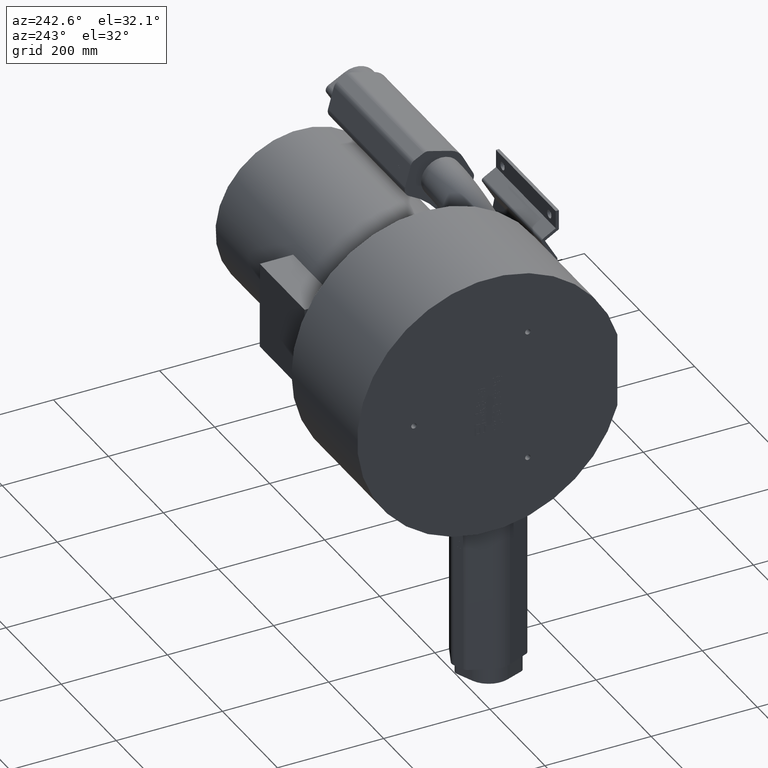
[diagram: clean part render]
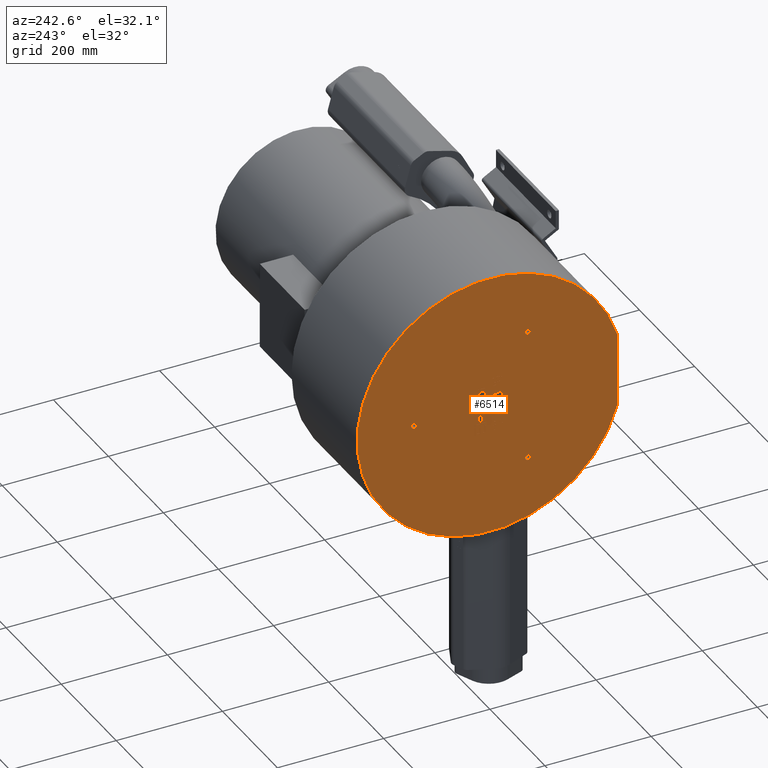
[diagram: same view with one face highlighted and labeled with its STEP entity id]
A machine part, auxiliary view. The second image highlights one B-rep face of the part: STEP entity #6514.
In plain terms, the highlighted planar face has unit normal (-1, 0, 0).
Its self-contained STEP definition (entity closure, byte-faithful):
#397=CARTESIAN_POINT('',(0.0,-3.974047899246216,-11.78353658536585));
#398=VERTEX_POINT('',#397);
#405=CARTESIAN_POINT('',(0.0,-3.974047899246216,-18.673780487804876));
#406=VERTEX_POINT('',#405);
#407=CARTESIAN_POINT('',(0.0,-3.974047899246216,-18.673780487804876));
#408=DIRECTION('',(0.0,0.0,1.0));
#409=VECTOR('',#408,6.890243902439027);
#410=LINE('',#407,#409);
#411=EDGE_CURVE('',#406,#398,#410,.T.);
#437=CARTESIAN_POINT('',(0.0,-4.263682045587678,-8.216463414634143));
#438=VERTEX_POINT('',#437);
#445=CARTESIAN_POINT('',(0.0,-3.974047899246216,-11.78353658536585));
#446=CARTESIAN_POINT('',(0.0,-3.974047899246216,-9.45121951219512));
#447=CARTESIAN_POINT('',(0.0,-4.263682045587678,-8.216463414634143));
#448=QUASI_UNIFORM_CURVE('',2,(#445,#446,#447),.UNSPECIFIED.,.F.,.U.);
#449=EDGE_CURVE('',#398,#438,#448,.T.);
#470=CARTESIAN_POINT('',(0.0,-5.69660887485597,-5.289634146341459));
#471=VERTEX_POINT('',#470);
#478=CARTESIAN_POINT('',(0.0,-4.263682045587678,-8.216463414634143));
#479=CARTESIAN_POINT('',(0.0,-4.660023509002313,-6.493902439024389));
#480=CARTESIAN_POINT('',(0.0,-5.69660887485597,-5.289634146341459));
#481=QUASI_UNIFORM_CURVE('',2,(#478,#479,#480),.UNSPECIFIED.,.F.,.U.);
#482=EDGE_CURVE('',#438,#471,#481,.T.);
#506=CARTESIAN_POINT('',(0.0,-13.867340582173044,-2.134146341463412));
#507=VERTEX_POINT('',#506);
#514=CARTESIAN_POINT('',(0.0,-5.69660887485597,-5.289634146341459));
#515=CARTESIAN_POINT('',(0.0,-7.022828387051094,-3.704268292682924));
#516=CARTESIAN_POINT('',(0.0,-11.184413752904751,-2.134146341463412));
#517=CARTESIAN_POINT('',(0.0,-13.867340582173044,-2.134146341463412));
#518=QUASI_UNIFORM_CURVE('',2,(#514,#515,#516,#517),.UNSPECIFIED.,.F.,.U.);
#519=EDGE_CURVE('',#471,#507,#518,.T.);
#552=CARTESIAN_POINT('',(0.0,-23.974047899246216,-11.448170731707314));
#553=VERTEX_POINT('',#552);
#560=CARTESIAN_POINT('',(0.0,-13.867340582173044,-2.134146341463412));
#561=CARTESIAN_POINT('',(0.0,-16.138682045587679,-2.134146341463412));
#562=CARTESIAN_POINT('',(0.0,-19.660023509002315,-3.201219512195119));
#563=CARTESIAN_POINT('',(0.0,-21.961852777294997,-4.862804878048777));
#564=CARTESIAN_POINT('',(0.0,-23.28807228949012,-6.844512195121948));
#565=CARTESIAN_POINT('',(0.0,-23.974047899246216,-9.634146341463412));
#566=CARTESIAN_POINT('',(0.0,-23.974047899246216,-11.448170731707314));
#567=QUASI_UNIFORM_CURVE('',2,(#560,#561,#562,#563,#564,#565,#566),.UNSPECIFIED.,.F.,.U.);
#568=EDGE_CURVE('',#507,#553,#567,.T.);
#587=CARTESIAN_POINT('',(0.0,-23.974047899246216,-18.673780487804876));
#588=VERTEX_POINT('',#587);
#595=CARTESIAN_POINT('',(0.0,-23.974047899246216,-11.448170731707314));
#596=DIRECTION('',(0.0,0.0,-1.0));
#597=VECTOR('',#596,7.225609756097562);
#598=LINE('',#595,#597);
#599=EDGE_CURVE('',#553,#588,#598,.T.);
#617=CARTESIAN_POINT('',(0.0,-23.974047899246216,-18.673780487804876));
#618=DIRECTION('',(0.0,1.0,0.0));
#619=VECTOR('',#618,20.0);
#620=LINE('',#617,#619);
#621=EDGE_CURVE('',#588,#406,#620,.T.);
#674=CARTESIAN_POINT('',(0.0,-21.946608874855972,-29.801829268292678));
#675=VERTEX_POINT('',#674);
#682=CARTESIAN_POINT('',(0.0,-17.327706435831583,-35.716463414634141));
#683=VERTEX_POINT('',#682);
#684=CARTESIAN_POINT('',(0.0,-17.327706435831583,-35.716463414634141));
#685=CARTESIAN_POINT('',(0.0,-18.836852777294997,-35.533536585365852));
#686=CARTESIAN_POINT('',(0.0,-20.757584484612067,-34.237804878048777));
#687=CARTESIAN_POINT('',(0.0,-21.946608874855972,-31.50914634146341));
#688=CARTESIAN_POINT('',(0.0,-21.946608874855972,-29.801829268292678));
#689=QUASI_UNIFORM_CURVE('',2,(#684,#685,#686,#687,#688),.UNSPECIFIED.,.F.,.U.);
#690=EDGE_CURVE('',#683,#675,#689,.T.);
#722=CARTESIAN_POINT('',(0.0,-18.547218630953534,-24.832317073170728));
#723=VERTEX_POINT('',#722);
#730=CARTESIAN_POINT('',(0.0,-21.946608874855972,-29.801829268292678));
#731=CARTESIAN_POINT('',(0.0,-21.946608874855972,-28.292682926829265));
#732=CARTESIAN_POINT('',(0.0,-21.04721863095353,-25.960365853658534));
#733=CARTESIAN_POINT('',(0.0,-19.477096679734021,-24.832317073170728));
#734=CARTESIAN_POINT('',(0.0,-18.547218630953534,-24.832317073170728));
#735=QUASI_UNIFORM_CURVE('',2,(#730,#731,#732,#733,#734),.UNSPECIFIED.,.F.,.U.);
#736=EDGE_CURVE('',#675,#723,#735,.T.);
#760=CARTESIAN_POINT('',(0.0,-15.727096679734021,-27.179878048780488));
#761=VERTEX_POINT('',#760);
#768=CARTESIAN_POINT('',(0.0,-18.547218630953534,-24.832317073170728));
#769=CARTESIAN_POINT('',(0.0,-17.602096679734021,-24.832317073170728));
#770=CARTESIAN_POINT('',(0.0,-16.199657655343778,-25.914634146341456));
#771=CARTESIAN_POINT('',(0.0,-15.727096679734021,-27.179878048780488));
#772=QUASI_UNIFORM_CURVE('',2,(#768,#769,#770,#771),.UNSPECIFIED.,.F.,.U.);
#773=EDGE_CURVE('',#723,#761,#772,.T.);
#797=CARTESIAN_POINT('',(0.0,-13.486243021197435,-34.634146341463413));
#798=VERTEX_POINT('',#797);
#805=CARTESIAN_POINT('',(0.0,-15.727096679734021,-27.179878048780488));
#806=CARTESIAN_POINT('',(0.0,-15.406974728514509,-27.987804878048777));
#807=CARTESIAN_POINT('',(0.0,-14.080755216319387,-33.521341463414629));
#808=CARTESIAN_POINT('',(0.0,-13.486243021197435,-34.634146341463406));
#809=QUASI_UNIFORM_CURVE('',2,(#805,#806,#807,#808),.UNSPECIFIED.,.F.,.U.);
#810=EDGE_CURVE('',#761,#798,#809,.T.);
#834=CARTESIAN_POINT('',(0.0,-9.141730826075484,-37.469512195121951));
#835=VERTEX_POINT('',#834);
#842=CARTESIAN_POINT('',(0.0,-13.486243021197435,-34.634146341463406));
#843=CARTESIAN_POINT('',(0.0,-12.739291801685241,-36.067073170731703));
#844=CARTESIAN_POINT('',(0.0,-10.513682045587679,-37.469512195121951));
#845=CARTESIAN_POINT('',(0.0,-9.141730826075483,-37.469512195121951));
#846=QUASI_UNIFORM_CURVE('',2,(#842,#843,#844,#845),.UNSPECIFIED.,.F.,.U.);
#847=EDGE_CURVE('',#798,#835,#846,.T.);
#874=CARTESIAN_POINT('',(0.0,-3.623438143148654,-30.411585365853657));
#875=VERTEX_POINT('',#874);
#882=CARTESIAN_POINT('',(0.0,-9.141730826075483,-37.469512195121951));
#883=CARTESIAN_POINT('',(0.0,-7.617340582173044,-37.469512195121951));
#884=CARTESIAN_POINT('',(0.0,-4.995389362660849,-35.746951219512191));
#885=CARTESIAN_POINT('',(0.0,-3.623438143148654,-32.439024390243901));
#886=CARTESIAN_POINT('',(0.0,-3.623438143148654,-30.411585365853657));
#887=QUASI_UNIFORM_CURVE('',2,(#882,#883,#884,#885,#886),.UNSPECIFIED.,.F.,.U.);
#888=EDGE_CURVE('',#835,#875,#887,.T.);
#915=CARTESIAN_POINT('',(0.0,-9.599047899246216,-22.881097560975604));
#916=VERTEX_POINT('',#915);
#923=CARTESIAN_POINT('',(0.0,-3.623438143148654,-30.411585365853657));
#924=CARTESIAN_POINT('',(0.0,-3.623438143148654,-28.185975609756095));
#925=CARTESIAN_POINT('',(0.0,-5.056364972416947,-24.786585365853657));
#926=CARTESIAN_POINT('',(0.0,-7.845999118758411,-22.942073170731703));
#927=CARTESIAN_POINT('',(0.0,-9.599047899246216,-22.881097560975604));
#928=QUASI_UNIFORM_CURVE('',2,(#923,#924,#925,#926,#927),.UNSPECIFIED.,.F.,.U.);
#929=EDGE_CURVE('',#875,#916,#928,.T.);
#948=CARTESIAN_POINT('',(0.0,-9.797218630953532,-25.411585365853657));
#949=VERTEX_POINT('',#948);
#956=CARTESIAN_POINT('',(0.0,-9.599047899246221,-22.881097560975611));
#957=DIRECTION('',(0.0,-0.078074205759966,-0.996947550473419));
#958=VECTOR('',#957,2.538235641058951);
#959=LINE('',#956,#958);
#960=EDGE_CURVE('',#916,#949,#959,.T.);
#984=CARTESIAN_POINT('',(0.0,-5.955755216319385,-30.304878048780488));
#985=VERTEX_POINT('',#984);
#992=CARTESIAN_POINT('',(0.0,-9.797218630953532,-25.411585365853657));
#993=CARTESIAN_POINT('',(0.0,-7.891730826075483,-25.609756097560972));
#994=CARTESIAN_POINT('',(0.0,-5.955755216319385,-27.987804878048777));
#995=CARTESIAN_POINT('',(0.0,-5.955755216319385,-30.304878048780488));
#996=QUASI_UNIFORM_CURVE('',2,(#992,#993,#994,#995),.UNSPECIFIED.,.F.,.U.);
#997=EDGE_CURVE('',#949,#985,#996,.T.);
#1021=CARTESIAN_POINT('',(0.0,-8.958803996807191,-34.923780487804876));
#1022=VERTEX_POINT('',#1021);
#1029=CARTESIAN_POINT('',(0.0,-5.955755216319385,-30.304878048780488));
#1030=CARTESIAN_POINT('',(0.0,-5.955755216319385,-32.713414634146339));
#1031=CARTESIAN_POINT('',(0.0,-7.724047899246216,-34.923780487804876));
#1032=CARTESIAN_POINT('',(0.0,-8.958803996807191,-34.923780487804876));
#1033=QUASI_UNIFORM_CURVE('',2,(#1029,#1030,#1031,#1032),.UNSPECIFIED.,.F.,.U.);
#1034=EDGE_CURVE('',#985,#1022,#1033,.T.);
#1055=CARTESIAN_POINT('',(0.0,-10.742340582173044,-34.146341463414629));
#1056=VERTEX_POINT('',#1055);
#1063=CARTESIAN_POINT('',(0.0,-8.958803996807191,-34.923780487804876));
#1064=CARTESIAN_POINT('',(0.0,-10.041121069977923,-34.923780487804876));
#1065=CARTESIAN_POINT('',(0.0,-10.742340582173044,-34.146341463414629));
#1066=QUASI_UNIFORM_CURVE('',2,(#1063,#1064,#1065),.UNSPECIFIED.,.F.,.U.);
#1067=EDGE_CURVE('',#1022,#1056,#1066,.T.);
#1091=CARTESIAN_POINT('',(0.0,-13.440511313880361,-25.685975609756095));
#1092=VERTEX_POINT('',#1091);
#1099=CARTESIAN_POINT('',(0.0,-10.742340582173044,-34.146341463414629));
#1100=CARTESIAN_POINT('',(0.0,-11.428316191929142,-33.368902439024389));
#1101=CARTESIAN_POINT('',(0.0,-12.891730826075484,-26.890243902439018));
#1102=CARTESIAN_POINT('',(0.0,-13.440511313880361,-25.685975609756095));
#1103=QUASI_UNIFORM_CURVE('',2,(#1099,#1100,#1101,#1102),.UNSPECIFIED.,.F.,.U.);
#1104=EDGE_CURVE('',#1056,#1092,#1103,.T.);
#1128=CARTESIAN_POINT('',(0.0,-18.318560094368166,-22.286585365853657));
#1129=VERTEX_POINT('',#1128);
#1136=CARTESIAN_POINT('',(0.0,-13.440511313880361,-25.685975609756095));
#1137=CARTESIAN_POINT('',(0.0,-14.248438143148654,-23.948170731707314));
#1138=CARTESIAN_POINT('',(0.0,-16.717950338270605,-22.286585365853657));
#1139=CARTESIAN_POINT('',(0.0,-18.318560094368166,-22.286585365853657));
#1140=QUASI_UNIFORM_CURVE('',2,(#1136,#1137,#1138,#1139),.UNSPECIFIED.,.F.,.U.);
#1141=EDGE_CURVE('',#1092,#1129,#1140,.T.);
#1168=CARTESIAN_POINT('',(0.0,-24.309413752904753,-29.679878048780491));
#1169=VERTEX_POINT('',#1168);
#1176=CARTESIAN_POINT('',(0.0,-18.318560094368166,-22.286585365853657));
#1177=CARTESIAN_POINT('',(0.0,-19.919169850465728,-22.286585365853657));
#1178=CARTESIAN_POINT('',(0.0,-22.739291801685241,-24.115853658536579));
#1179=CARTESIAN_POINT('',(0.0,-24.309413752904753,-27.545731707317067));
#1180=CARTESIAN_POINT('',(0.0,-24.309413752904753,-29.679878048780488));
#1181=QUASI_UNIFORM_CURVE('',2,(#1176,#1177,#1178,#1179,#1180),.UNSPECIFIED.,.F.,.U.);
#1182=EDGE_CURVE('',#1129,#1169,#1181,.T.);
#1209=CARTESIAN_POINT('',(0.0,-17.541121069977923,-38.216463414634141));
#1210=VERTEX_POINT('',#1209);
#1217=CARTESIAN_POINT('',(0.0,-24.309413752904753,-29.679878048780488));
#1218=CARTESIAN_POINT('',(0.0,-24.309413752904753,-32.408536585365852));
#1219=CARTESIAN_POINT('',(0.0,-22.724047899246216,-36.067073170731703));
#1220=CARTESIAN_POINT('',(0.0,-19.553316191929142,-38.155487804878049));
#1221=CARTESIAN_POINT('',(0.0,-17.541121069977923,-38.216463414634141));
#1222=QUASI_UNIFORM_CURVE('',2,(#1217,#1218,#1219,#1220,#1221),.UNSPECIFIED.,.F.,.U.);
#1223=EDGE_CURVE('',#1169,#1210,#1222,.T.);
#1241=CARTESIAN_POINT('',(0.0,-17.541121069977937,-38.216463414634141));
#1242=DIRECTION('',(0.0,0.085056498883755,0.996376129781137));
#1243=VECTOR('',#1242,2.509092626043881);
#1244=LINE('',#1241,#1243);
#1245=EDGE_CURVE('',#1210,#683,#1244,.T.);
#1290=CARTESIAN_POINT('',(0.0,-23.974047899246216,-54.161585365853654));
#1291=VERTEX_POINT('',#1290);
#1298=CARTESIAN_POINT('',(0.0,-23.974047899246216,-40.945121951219512));
#1299=VERTEX_POINT('',#1298);
#1300=CARTESIAN_POINT('',(0.0,-23.974047899246216,-40.945121951219512));
#1301=DIRECTION('',(0.0,0.0,-1.0));
#1302=VECTOR('',#1301,13.216463414634141);
#1303=LINE('',#1300,#1302);
#1304=EDGE_CURVE('',#1299,#1291,#1303,.T.);
#1330=CARTESIAN_POINT('',(0.0,-22.266730826075488,-53.871951219512191));
#1331=VERTEX_POINT('',#1330);
#1338=CARTESIAN_POINT('',(0.0,-23.974047899246216,-54.161585365853654));
#1339=CARTESIAN_POINT('',(0.0,-23.089901557782802,-54.192073170731703));
#1340=CARTESIAN_POINT('',(0.0,-22.266730826075481,-53.871951219512191));
#1341=QUASI_UNIFORM_CURVE('',2,(#1338,#1339,#1340),.UNSPECIFIED.,.F.,.U.);
#1342=EDGE_CURVE('',#1291,#1331,#1341,.T.);
#1366=CARTESIAN_POINT('',(0.0,-16.580755216319389,-49.03963414634147));
#1367=VERTEX_POINT('',#1366);
#1374=CARTESIAN_POINT('',(0.0,-22.266730826075481,-53.871951219512191));
#1375=CARTESIAN_POINT('',(0.0,-20.910023509002311,-53.368902439024389));
#1376=CARTESIAN_POINT('',(0.0,-18.303316191929142,-51.143292682926827));
#1377=CARTESIAN_POINT('',(0.0,-16.580755216319389,-49.03963414634147));
#1378=QUASI_UNIFORM_CURVE('',2,(#1374,#1375,#1376,#1377),.UNSPECIFIED.,.F.,.U.);
#1379=EDGE_CURVE('',#1331,#1367,#1378,.T.);
#1403=CARTESIAN_POINT('',(0.0,-9.385633265099873,-43.506097560975611));
#1404=VERTEX_POINT('',#1403);
#1411=CARTESIAN_POINT('',(0.0,-16.580755216319389,-49.03963414634147));
#1412=CARTESIAN_POINT('',(0.0,-13.897828387051094,-45.792682926829265));
#1413=CARTESIAN_POINT('',(0.0,-10.788072289490119,-43.506097560975611));
#1414=CARTESIAN_POINT('',(0.0,-9.385633265099873,-43.506097560975611));
#1415=QUASI_UNIFORM_CURVE('',2,(#1411,#1412,#1413,#1414),.UNSPECIFIED.,.F.,.U.);
#1416=EDGE_CURVE('',#1367,#1404,#1415,.T.);
#1440=CARTESIAN_POINT('',(0.0,-5.925267411441338,-47.271341463414629));
#1441=VERTEX_POINT('',#1440);
#1448=CARTESIAN_POINT('',(0.0,-9.385633265099873,-43.506097560975611));
#1449=CARTESIAN_POINT('',(0.0,-7.922218630953532,-43.506097560975611));
#1450=CARTESIAN_POINT('',(0.0,-5.925267411441338,-45.594512195121951));
#1451=CARTESIAN_POINT('',(0.0,-5.925267411441338,-47.271341463414629));
#1452=QUASI_UNIFORM_CURVE('',2,(#1448,#1449,#1450,#1451),.UNSPECIFIED.,.F.,.U.);
#1453=EDGE_CURVE('',#1404,#1441,#1452,.T.);
#1477=CARTESIAN_POINT('',(0.0,-9.934413752904753,-51.173780487804876));
#1478=VERTEX_POINT('',#1477);
#1485=CARTESIAN_POINT('',(0.0,-5.925267411441338,-47.271341463414629));
#1486=CARTESIAN_POINT('',(0.0,-5.925267411441338,-49.03963414634147));
#1487=CARTESIAN_POINT('',(0.0,-8.059413752904751,-51.158536585365859));
#1488=CARTESIAN_POINT('',(0.0,-9.934413752904751,-51.173780487804876));
#1489=QUASI_UNIFORM_CURVE('',2,(#1485,#1486,#1487,#1488),.UNSPECIFIED.,.F.,.U.);
#1490=EDGE_CURVE('',#1441,#1478,#1489,.T.);
#1509=CARTESIAN_POINT('',(0.0,-9.675267411441338,-53.704268292682926));
#1510=VERTEX_POINT('',#1509);
#1517=CARTESIAN_POINT('',(0.0,-9.934413752904753,-51.173780487804876));
#1518=DIRECTION('',(0.0,0.101876803556506,-0.994797022963533));
#1519=VECTOR('',#1518,2.543722735859866);
#1520=LINE('',#1517,#1519);
#1521=EDGE_CURVE('',#1478,#1510,#1520,.T.);
#1545=CARTESIAN_POINT('',(0.0,-3.897828387051092,-47.21036585365853));
#1546=VERTEX_POINT('',#1545);
#1553=CARTESIAN_POINT('',(0.0,-9.675267411441338,-53.704268292682926));
#1554=CARTESIAN_POINT('',(0.0,-6.855145460221825,-53.445121951219512));
#1555=CARTESIAN_POINT('',(0.0,-3.897828387051092,-50.060975609756099));
#1556=CARTESIAN_POINT('',(0.0,-3.897828387051092,-47.21036585365853));
#1557=QUASI_UNIFORM_CURVE('',2,(#1553,#1554,#1555,#1556),.UNSPECIFIED.,.F.,.U.);
#1558=EDGE_CURVE('',#1510,#1546,#1557,.T.);
#1582=CARTESIAN_POINT('',(0.0,-9.44660887485597,-40.975609756097562));
#1583=VERTEX_POINT('',#1582);
#1590=CARTESIAN_POINT('',(0.0,-3.897828387051092,-47.21036585365853));
#1591=CARTESIAN_POINT('',(0.0,-3.897828387051092,-44.329268292682926));
#1592=CARTESIAN_POINT('',(0.0,-7.083803996807189,-40.975609756097562));
#1593=CARTESIAN_POINT('',(0.0,-9.44660887485597,-40.975609756097562));
#1594=QUASI_UNIFORM_CURVE('',2,(#1590,#1591,#1592,#1593),.UNSPECIFIED.,.F.,.U.);
#1595=EDGE_CURVE('',#1546,#1583,#1594,.T.);
#1622=CARTESIAN_POINT('',(0.0,-17.769779606563286,-46.875));
#1623=VERTEX_POINT('',#1622);
#1630=CARTESIAN_POINT('',(0.0,-9.44660887485597,-40.975609756097562));
#1631=CARTESIAN_POINT('',(0.0,-10.6508771675389,-40.975609756097562));
#1632=CARTESIAN_POINT('',(0.0,-12.967950338270606,-41.951219512195124));
#1633=CARTESIAN_POINT('',(0.0,-15.528925948026702,-44.237804878048777));
#1634=CARTESIAN_POINT('',(0.0,-17.769779606563286,-46.875));
#1635=QUASI_UNIFORM_CURVE('',2,(#1630,#1631,#1632,#1633,#1634),.UNSPECIFIED.,.F.,.U.);
#1636=EDGE_CURVE('',#1583,#1623,#1635,.T.);
#1660=CARTESIAN_POINT('',(0.0,-21.611243021197435,-50.746951219512198));
#1661=VERTEX_POINT('',#1660);
#1668=CARTESIAN_POINT('',(0.0,-17.769779606563286,-46.875));
#1669=CARTESIAN_POINT('',(0.0,-19.614291801685241,-49.08536585365853));
#1670=CARTESIAN_POINT('',(0.0,-20.940511313880364,-50.33536585365853));
#1671=CARTESIAN_POINT('',(0.0,-21.611243021197435,-50.746951219512191));
#1672=QUASI_UNIFORM_CURVE('',2,(#1668,#1669,#1670,#1671),.UNSPECIFIED.,.F.,.U.);
#1673=EDGE_CURVE('',#1623,#1661,#1672,.T.);
#1692=CARTESIAN_POINT('',(0.0,-21.611243021197435,-40.945121951219512));
#1693=VERTEX_POINT('',#1692);
#1700=CARTESIAN_POINT('',(0.0,-21.611243021197435,-50.746951219512198));
#1701=DIRECTION('',(0.0,0.0,1.0));
#1702=VECTOR('',#1701,9.801829268292686);
#1703=LINE('',#1700,#1702);
#1704=EDGE_CURVE('',#1661,#1693,#1703,.T.);
#1722=CARTESIAN_POINT('',(0.0,-21.611243021197431,-40.945121951219512));
#1723=DIRECTION('',(0.0,-1.0,0.0));
#1724=VECTOR('',#1723,2.362804878048792);
#1725=LINE('',#1722,#1724);
#1726=EDGE_CURVE('',#1693,#1299,#1725,.T.);
#1768=CARTESIAN_POINT('',(0.0,21.99695241160509,35.975609756097562));
#1769=VERTEX_POINT('',#1768);
#1776=CARTESIAN_POINT('',(0.0,21.99695241160509,33.765243902439025));
#1777=VERTEX_POINT('',#1776);
#1778=CARTESIAN_POINT('',(0.0,21.996952411605086,33.765243902439025));
#1779=DIRECTION('',(0.0,0.0,1.0));
#1780=VECTOR('',#1779,2.210365853658537);
#1781=LINE('',#1778,#1780);
#1782=EDGE_CURVE('',#1777,#1769,#1781,.T.);
#1806=CARTESIAN_POINT('',(0.0,19.801830460385577,35.975609756097562));
#1807=VERTEX_POINT('',#1806);
#1814=CARTESIAN_POINT('',(0.0,21.996952411605093,35.975609756097562));
#1815=DIRECTION('',(0.0,-1.0,0.0));
#1816=VECTOR('',#1815,2.195121951219505);
#1817=LINE('',#1814,#1816);
#1818=EDGE_CURVE('',#1769,#1807,#1817,.T.);
#1842=CARTESIAN_POINT('',(0.0,22.317074362824599,39.115853658536587));
#1843=VERTEX_POINT('',#1842);
#1850=CARTESIAN_POINT('',(0.0,19.801830460385577,35.975609756097562));
#1851=CARTESIAN_POINT('',(0.0,21.341464606727044,36.814024390243901));
#1852=CARTESIAN_POINT('',(0.0,22.317074362824599,38.246951219512198));
#1853=CARTESIAN_POINT('',(0.0,22.317074362824599,39.115853658536587));
#1854=QUASI_UNIFORM_CURVE('',2,(#1850,#1851,#1852,#1853),.UNSPECIFIED.,.F.,.U.);
#1855=EDGE_CURVE('',#1807,#1843,#1854,.T.);
#1876=CARTESIAN_POINT('',(0.0,21.539635338434362,41.631097560975611));
#1877=VERTEX_POINT('',#1876);
#1884=CARTESIAN_POINT('',(0.0,22.317074362824599,39.115853658536587));
#1885=CARTESIAN_POINT('',(0.0,22.317074362824599,40.350609756097562));
#1886=CARTESIAN_POINT('',(0.0,21.539635338434362,41.631097560975611));
#1887=QUASI_UNIFORM_CURVE('',2,(#1884,#1885,#1886),.UNSPECIFIED.,.F.,.U.);
#1888=EDGE_CURVE('',#1843,#1877,#1887,.T.);
#1907=CARTESIAN_POINT('',(0.0,19.253049972580701,40.777439024390247));
#1908=VERTEX_POINT('',#1907);
#1915=CARTESIAN_POINT('',(0.0,21.539635338434358,41.631097560975604));
#1916=DIRECTION('',(0.0,-0.936841514727357,-0.349754165498212));
#1917=VECTOR('',#1916,2.440738726783591);
#1918=LINE('',#1915,#1917);
#1919=EDGE_CURVE('',#1877,#1908,#1918,.T.);
#1940=CARTESIAN_POINT('',(0.0,19.786586557946556,38.978658536585364));
#1941=VERTEX_POINT('',#1940);
#1948=CARTESIAN_POINT('',(0.0,19.253049972580701,40.777439024390247));
#1949=CARTESIAN_POINT('',(0.0,19.786586557946556,39.878048780487809));
#1950=CARTESIAN_POINT('',(0.0,19.786586557946556,38.978658536585364));
#1951=QUASI_UNIFORM_CURVE('',2,(#1948,#1949,#1950),.UNSPECIFIED.,.F.,.U.);
#1952=EDGE_CURVE('',#1908,#1941,#1951,.T.);
#1976=CARTESIAN_POINT('',(0.0,17.957318265263631,36.631097560975611));
#1977=VERTEX_POINT('',#1976);
#1984=CARTESIAN_POINT('',(0.0,19.786586557946556,38.978658536585364));
#1985=CARTESIAN_POINT('',(0.0,19.786586557946556,38.170731707317074));
#1986=CARTESIAN_POINT('',(0.0,18.810976801848994,36.905487804878049));
#1987=CARTESIAN_POINT('',(0.0,17.957318265263627,36.631097560975611));
#1988=QUASI_UNIFORM_CURVE('',2,(#1984,#1985,#1986,#1987),.UNSPECIFIED.,.F.,.U.);
#1989=EDGE_CURVE('',#1941,#1977,#1988,.T.);
#2010=CARTESIAN_POINT('',(0.0,15.091464606727044,36.219512195121951));
#2011=VERTEX_POINT('',#2010);
#2018=CARTESIAN_POINT('',(0.0,17.957318265263627,36.631097560975611));
#2019=CARTESIAN_POINT('',(0.0,16.646342655507528,36.219512195121951));
#2020=CARTESIAN_POINT('',(0.0,15.091464606727044,36.219512195121951));
#2021=QUASI_UNIFORM_CURVE('',2,(#2018,#2019,#2020),.UNSPECIFIED.,.F.,.U.);
#2022=EDGE_CURVE('',#1977,#2011,#2021,.T.);
#2041=CARTESIAN_POINT('',(0.0,7.500001192092896,36.219512195121951));
#2042=VERTEX_POINT('',#2041);
#2049=CARTESIAN_POINT('',(0.0,15.091464606727037,36.219512195121951));
#2050=DIRECTION('',(0.0,-1.0,0.0));
#2051=VECTOR('',#2050,7.591463414634141);
#2052=LINE('',#2049,#2051);
#2053=EDGE_CURVE('',#2011,#2042,#2052,.T.);
#2072=CARTESIAN_POINT('',(0.0,7.500001192092896,33.765243902439025));
#2073=VERTEX_POINT('',#2072);
#2080=CARTESIAN_POINT('',(0.0,7.500001192092896,36.219512195121951));
#2081=DIRECTION('',(0.0,0.0,-1.0));
#2082=VECTOR('',#2081,2.454268292682926);
#2083=LINE('',#2080,#2082);
#2084=EDGE_CURVE('',#2042,#2073,#2083,.T.);
#2102=CARTESIAN_POINT('',(0.0,7.500001192092896,33.765243902439025));
#2103=DIRECTION('',(0.0,1.0,0.0));
#2104=VECTOR('',#2103,14.496951219512191);
#2105=LINE('',#2102,#2104);
#2106=EDGE_CURVE('',#2073,#1777,#2105,.T.);
#2285=CARTESIAN_POINT('',(0.0,7.179879240873383,-22.225609756097562));
#2286=VERTEX_POINT('',#2285);
#2293=CARTESIAN_POINT('',(0.0,11.859757289653871,-15.853658536585364));
#2294=VERTEX_POINT('',#2293);
#2295=CARTESIAN_POINT('',(0.0,11.859757289653871,-15.853658536585364));
#2296=CARTESIAN_POINT('',(0.0,9.634147533556309,-16.463414634146339));
#2297=CARTESIAN_POINT('',(0.0,7.179879240873383,-19.710365853658537));
#2298=CARTESIAN_POINT('',(0.0,7.179879240873383,-22.225609756097562));
#2299=QUASI_UNIFORM_CURVE('',2,(#2295,#2296,#2297,#2298),.UNSPECIFIED.,.F.,.U.);
#2300=EDGE_CURVE('',#2294,#2286,#2299,.T.);
#2329=CARTESIAN_POINT('',(0.0,14.618903631117286,-29.131097560975611));
#2330=VERTEX_POINT('',#2329);
#2337=CARTESIAN_POINT('',(0.0,7.179879240873383,-22.225609756097562));
#2338=CARTESIAN_POINT('',(0.0,7.179879240873383,-25.411585365853657));
#2339=CARTESIAN_POINT('',(0.0,11.097562167702652,-29.131097560975611));
#2340=CARTESIAN_POINT('',(0.0,14.618903631117286,-29.131097560975611));
#2341=QUASI_UNIFORM_CURVE('',2,(#2337,#2338,#2339,#2340),.UNSPECIFIED.,.F.,.U.);
#2342=EDGE_CURVE('',#2286,#2330,#2341,.T.);
#2366=CARTESIAN_POINT('',(0.0,22.317074362824599,-22.362804878048784));
#2367=VERTEX_POINT('',#2366);
#2374=CARTESIAN_POINT('',(0.0,14.618903631117286,-29.131097560975611));
#2375=CARTESIAN_POINT('',(0.0,18.277440216483139,-29.131097560975611));
#2376=CARTESIAN_POINT('',(0.0,22.317074362824599,-25.365853658536587));
#2377=CARTESIAN_POINT('',(0.0,22.317074362824599,-22.362804878048781));
#2378=QUASI_UNIFORM_CURVE('',2,(#2374,#2375,#2376,#2377),.UNSPECIFIED.,.F.,.U.);
#2379=EDGE_CURVE('',#2330,#2367,#2378,.T.);
#2403=CARTESIAN_POINT('',(0.0,14.771342655507528,-15.777439024390244));
#2404=VERTEX_POINT('',#2403);
#2411=CARTESIAN_POINT('',(0.0,22.317074362824599,-22.362804878048781));
#2412=CARTESIAN_POINT('',(0.0,22.317074362824599,-19.466463414634145));
#2413=CARTESIAN_POINT('',(0.0,18.353659728678263,-15.777439024390244));
#2414=CARTESIAN_POINT('',(0.0,14.771342655507528,-15.777439024390244));
#2415=QUASI_UNIFORM_CURVE('',2,(#2411,#2412,#2413,#2414),.UNSPECIFIED.,.F.,.U.);
#2416=EDGE_CURVE('',#2367,#2404,#2415,.T.);
#2437=CARTESIAN_POINT('',(0.0,14.115854850629482,-15.792682926829267));
#2438=VERTEX_POINT('',#2437);
#2445=CARTESIAN_POINT('',(0.0,14.771342655507528,-15.777439024390244));
#2446=CARTESIAN_POINT('',(0.0,14.557928021361189,-15.777439024390244));
#2447=CARTESIAN_POINT('',(0.0,14.115854850629482,-15.792682926829267));
#2448=QUASI_UNIFORM_CURVE('',2,(#2445,#2446,#2447),.UNSPECIFIED.,.F.,.U.);
#2449=EDGE_CURVE('',#2404,#2438,#2448,.T.);
#2468=CARTESIAN_POINT('',(0.0,14.115854850629482,-26.600609756097562));
#2469=VERTEX_POINT('',#2468);
#2476=CARTESIAN_POINT('',(0.0,14.115854850629486,-15.792682926829267));
#2477=DIRECTION('',(0.0,0.0,-1.0));
#2478=VECTOR('',#2477,10.807926829268295);
#2479=LINE('',#2476,#2478);
#2480=EDGE_CURVE('',#2438,#2469,#2479,.T.);
#2504=CARTESIAN_POINT('',(0.0,9.192074362824602,-22.225609756097558));
#2505=VERTEX_POINT('',#2504);
#2512=CARTESIAN_POINT('',(0.0,14.115854850629482,-26.600609756097562));
#2513=CARTESIAN_POINT('',(0.0,11.722562167702652,-26.463414634146343));
#2514=CARTESIAN_POINT('',(0.0,9.192074362824602,-24.039634146341463));
#2515=CARTESIAN_POINT('',(0.0,9.192074362824602,-22.225609756097562));
#2516=QUASI_UNIFORM_CURVE('',2,(#2512,#2513,#2514,#2515),.UNSPECIFIED.,.F.,.U.);
#2517=EDGE_CURVE('',#2469,#2505,#2516,.T.);
#2541=CARTESIAN_POINT('',(0.0,12.179879240873383,-18.399390243902438));
#2542=VERTEX_POINT('',#2541);
#2549=CARTESIAN_POINT('',(0.0,9.192074362824602,-22.225609756097562));
#2550=CARTESIAN_POINT('',(0.0,9.192074362824602,-20.868902439024389));
#2551=CARTESIAN_POINT('',(0.0,10.625001192092896,-18.963414634146339));
#2552=CARTESIAN_POINT('',(0.0,12.179879240873383,-18.399390243902438));
#2553=QUASI_UNIFORM_CURVE('',2,(#2549,#2550,#2551,#2552),.UNSPECIFIED.,.F.,.U.);
#2554=EDGE_CURVE('',#2505,#2542,#2553,.T.);
#2572=CARTESIAN_POINT('',(0.0,12.179879240873371,-18.399390243902442));
#2573=DIRECTION('',(0.0,-0.124765929803273,0.992186203673648));
#2574=VECTOR('',#2573,2.565780191148903);
#2575=LINE('',#2572,#2574);
#2576=EDGE_CURVE('',#2542,#2294,#2575,.T.);
#2620=CARTESIAN_POINT('',(0.0,27.500001192092896,-32.118902439024389));
#2621=VERTEX_POINT('',#2620);
#2628=CARTESIAN_POINT('',(0.0,27.500001192092896,-34.573170731707322));
#2629=VERTEX_POINT('',#2628);
#2630=CARTESIAN_POINT('',(0.0,27.500001192092896,-34.573170731707322));
#2631=DIRECTION('',(0.0,0.0,1.0));
#2632=VECTOR('',#2631,2.454268292682926);
#2633=LINE('',#2630,#2632);
#2634=EDGE_CURVE('',#2629,#2621,#2633,.T.);
#2658=CARTESIAN_POINT('',(0.0,7.500001192092896,-32.118902439024389));
#2659=VERTEX_POINT('',#2658);
#2666=CARTESIAN_POINT('',(0.0,27.500001192092896,-32.118902439024389));
#2667=DIRECTION('',(0.0,-1.0,0.0));
#2668=VECTOR('',#2667,20.0);
#2669=LINE('',#2666,#2668);
#2670=EDGE_CURVE('',#2621,#2659,#2669,.T.);
#2689=CARTESIAN_POINT('',(0.0,7.500001192092896,-34.573170731707322));
#2690=VERTEX_POINT('',#2689);
#2697=CARTESIAN_POINT('',(0.0,7.500001192092896,-32.118902439024389));
#2698=DIRECTION('',(0.0,0.0,-1.0));
#2699=VECTOR('',#2698,2.454268292682933);
#2700=LINE('',#2697,#2699);
#2701=EDGE_CURVE('',#2659,#2690,#2700,.T.);
#2719=CARTESIAN_POINT('',(0.0,7.500001192092896,-34.573170731707322));
#2720=DIRECTION('',(0.0,1.0,0.0));
#2721=VECTOR('',#2720,20.0);
#2722=LINE('',#2719,#2721);
#2723=EDGE_CURVE('',#2690,#2629,#2722,.T.);
#2756=CARTESIAN_POINT('',(0.0,27.500001192092896,-38.307926829268297));
#2757=VERTEX_POINT('',#2756);
#2764=CARTESIAN_POINT('',(0.0,27.500001192092896,-52.78963414634147));
#2765=VERTEX_POINT('',#2764);
#2766=CARTESIAN_POINT('',(0.0,27.500001192092896,-52.78963414634147));
#2767=DIRECTION('',(0.0,0.0,1.0));
#2768=VECTOR('',#2767,14.481707317073173);
#2769=LINE('',#2766,#2768);
#2770=EDGE_CURVE('',#2765,#2757,#2769,.T.);
#2794=CARTESIAN_POINT('',(0.0,25.137196314044115,-38.307926829268297));
#2795=VERTEX_POINT('',#2794);
#2802=CARTESIAN_POINT('',(0.0,27.500001192092896,-38.307926829268297));
#2803=DIRECTION('',(0.0,-1.0,0.0));
#2804=VECTOR('',#2803,2.362804878048777);
#2805=LINE('',#2802,#2804);
#2806=EDGE_CURVE('',#2757,#2795,#2805,.T.);
#2825=CARTESIAN_POINT('',(0.0,25.137196314044115,-50.137195121951223));
#2826=VERTEX_POINT('',#2825);
#2833=CARTESIAN_POINT('',(0.0,25.137196314044115,-38.307926829268297));
#2834=DIRECTION('',(0.0,0.0,-1.0));
#2835=VECTOR('',#2834,11.829268292682926);
#2836=LINE('',#2833,#2835);
#2837=EDGE_CURVE('',#2795,#2826,#2836,.T.);
#2856=CARTESIAN_POINT('',(0.0,19.024391435995337,-50.137195121951223));
#2857=VERTEX_POINT('',#2856);
#2864=CARTESIAN_POINT('',(0.0,25.137196314044111,-50.137195121951223));
#2865=DIRECTION('',(0.0,-1.0,0.0));
#2866=VECTOR('',#2865,6.112804878048785);
#2867=LINE('',#2864,#2866);
#2868=EDGE_CURVE('',#2826,#2857,#2867,.T.);
#2887=CARTESIAN_POINT('',(0.0,19.024391435995337,-39.054878048780488));
#2888=VERTEX_POINT('',#2887);
#2895=CARTESIAN_POINT('',(0.0,19.024391435995334,-50.137195121951223));
#2896=DIRECTION('',(0.0,0.0,1.0));
#2897=VECTOR('',#2896,11.082317073170735);
#2898=LINE('',#2895,#2897);
#2899=EDGE_CURVE('',#2857,#2888,#2898,.T.);
#2918=CARTESIAN_POINT('',(0.0,16.661586557946553,-39.054878048780488));
#2919=VERTEX_POINT('',#2918);
#2926=CARTESIAN_POINT('',(0.0,19.024391435995341,-39.054878048780488));
#2927=DIRECTION('',(0.0,-1.0,0.0));
#2928=VECTOR('',#2927,2.362804878048785);
#2929=LINE('',#2926,#2928);
#2930=EDGE_CURVE('',#2888,#2919,#2929,.T.);
#2949=CARTESIAN_POINT('',(0.0,16.661586557946553,-50.137195121951223));
#2950=VERTEX_POINT('',#2949);
#2957=CARTESIAN_POINT('',(0.0,16.661586557946553,-39.054878048780488));
#2958=DIRECTION('',(0.0,0.0,-1.0));
#2959=VECTOR('',#2958,11.082317073170735);
#2960=LINE('',#2957,#2959);
#2961=EDGE_CURVE('',#2919,#2950,#2960,.T.);
#2980=CARTESIAN_POINT('',(0.0,9.862806070141676,-50.137195121951223));
#2981=VERTEX_POINT('',#2980);
#2988=CARTESIAN_POINT('',(0.0,16.661586557946549,-50.137195121951223));
#2989=DIRECTION('',(0.0,-1.0,0.0));
#2990=VECTOR('',#2989,6.798780487804876);
#2991=LINE('',#2988,#2990);
#2992=EDGE_CURVE('',#2950,#2981,#2991,.T.);
#3011=CARTESIAN_POINT('',(0.0,9.862806070141676,-37.850609756097562));
#3012=VERTEX_POINT('',#3011);
#3019=CARTESIAN_POINT('',(0.0,9.862806070141676,-50.137195121951223));
#3020=DIRECTION('',(0.0,0.0,1.0));
#3021=VECTOR('',#3020,12.286585365853661);
#3022=LINE('',#3019,#3021);
#3023=EDGE_CURVE('',#2981,#3012,#3022,.T.);
#3042=CARTESIAN_POINT('',(0.0,7.500001192092896,-37.850609756097562));
#3043=VERTEX_POINT('',#3042);
#3050=CARTESIAN_POINT('',(0.0,9.86280607014168,-37.850609756097562));
#3051=DIRECTION('',(0.0,-1.0,0.0));
#3052=VECTOR('',#3051,2.362804878048777);
#3053=LINE('',#3050,#3052);
#3054=EDGE_CURVE('',#3012,#3043,#3053,.T.);
#3073=CARTESIAN_POINT('',(0.0,7.500001192092896,-52.78963414634147));
#3074=VERTEX_POINT('',#3073);
#3081=CARTESIAN_POINT('',(0.0,7.500001192092896,-37.850609756097562));
#3082=DIRECTION('',(0.0,0.0,-1.0));
#3083=VECTOR('',#3082,14.939024390243908);
#3084=LINE('',#3081,#3083);
#3085=EDGE_CURVE('',#3043,#3074,#3084,.T.);
#3103=CARTESIAN_POINT('',(0.0,7.500001192092896,-52.78963414634147));
#3104=DIRECTION('',(0.0,1.0,0.0));
#3105=VECTOR('',#3104,20.0);
#3106=LINE('',#3103,#3105);
#3107=EDGE_CURVE('',#3074,#2765,#3106,.T.);
#3148=CARTESIAN_POINT('',(0.0,27.500001192092896,-10.304878048780486));
#3149=VERTEX_POINT('',#3148);
#3156=CARTESIAN_POINT('',(0.0,27.500001192092896,-12.759146341463412));
#3157=VERTEX_POINT('',#3156);
#3158=CARTESIAN_POINT('',(0.0,27.500001192092896,-12.759146341463412));
#3159=DIRECTION('',(0.0,0.0,1.0));
#3160=VECTOR('',#3159,2.454268292682926);
#3161=LINE('',#3158,#3160);
#3162=EDGE_CURVE('',#3157,#3149,#3161,.T.);
#3186=CARTESIAN_POINT('',(0.0,16.097562167702652,-10.304878048780486));
#3187=VERTEX_POINT('',#3186);
#3194=CARTESIAN_POINT('',(0.0,27.500001192092896,-10.304878048780486));
#3195=DIRECTION('',(0.0,-1.0,0.0));
#3196=VECTOR('',#3195,11.402439024390247);
#3197=LINE('',#3194,#3196);
#3198=EDGE_CURVE('',#3149,#3187,#3197,.T.);
#3217=CARTESIAN_POINT('',(0.0,21.99695241160509,-4.496951219512193));
#3218=VERTEX_POINT('',#3217);
#3225=CARTESIAN_POINT('',(0.0,16.097562167702652,-10.304878048780484));
#3226=DIRECTION('',(0.0,0.712609306136219,0.701561099839534));
#3227=VECTOR('',#3226,8.278575922463103);
#3228=LINE('',#3225,#3227);
#3229=EDGE_CURVE('',#3187,#3218,#3228,.T.);
#3248=CARTESIAN_POINT('',(0.0,21.99695241160509,-1.310975609756095));
#3249=VERTEX_POINT('',#3248);
#3256=CARTESIAN_POINT('',(0.0,21.996952411605086,-4.496951219512193));
#3257=DIRECTION('',(0.0,0.0,1.0));
#3258=VECTOR('',#3257,3.185975609756097);
#3259=LINE('',#3256,#3258);
#3260=EDGE_CURVE('',#3218,#3249,#3259,.T.);
#3279=CARTESIAN_POINT('',(0.0,16.615854850629482,-6.844512195121949));
#3280=VERTEX_POINT('',#3279);
#3287=CARTESIAN_POINT('',(0.0,21.996952411605086,-1.310975609756095));
#3288=DIRECTION('',(0.0,-0.697162996263725,-0.716912656214539));
#3289=VECTOR('',#3288,7.718564510472139);
#3290=LINE('',#3287,#3289);
#3291=EDGE_CURVE('',#3249,#3280,#3290,.T.);
#3310=CARTESIAN_POINT('',(0.0,7.500001192092896,-0.746951219512193));
#3311=VERTEX_POINT('',#3310);
#3318=CARTESIAN_POINT('',(0.0,16.615854850629482,-6.844512195121947));
#3319=DIRECTION('',(0.0,-0.831193947298971,0.555982573444128));
#3320=VECTOR('',#3319,10.967180028390784);
#3321=LINE('',#3318,#3320);
#3322=EDGE_CURVE('',#3280,#3311,#3321,.T.);
#3341=CARTESIAN_POINT('',(0.0,7.500001192092896,-3.780487804878046));
#3342=VERTEX_POINT('',#3341);
#3349=CARTESIAN_POINT('',(0.0,7.500001192092896,-0.746951219512193));
#3350=DIRECTION('',(0.0,0.0,-1.0));
#3351=VECTOR('',#3350,3.033536585365852);
#3352=LINE('',#3349,#3351);
#3353=EDGE_CURVE('',#3311,#3342,#3352,.T.);
#3372=CARTESIAN_POINT('',(0.0,14.908537777458747,-8.597560975609754));
#3373=VERTEX_POINT('',#3372);
#3380=CARTESIAN_POINT('',(0.0,7.500001192092903,-3.780487804878053));
#3381=DIRECTION('',(0.0,0.83836478364535,-0.54510961241138));
#3382=VECTOR('',#3381,8.836889060573714);
#3383=LINE('',#3380,#3382);
#3384=EDGE_CURVE('',#3342,#3373,#3383,.T.);
#3403=CARTESIAN_POINT('',(0.0,13.24695241160509,-10.304878048780486));
#3404=VERTEX_POINT('',#3403);
#3411=CARTESIAN_POINT('',(0.0,14.908537777458733,-8.597560975609753));
#3412=DIRECTION('',(0.0,-0.697443790084572,-0.716639490729102));
#3413=VECTOR('',#3412,2.38239323294021);
#3414=LINE('',#3411,#3413);
#3415=EDGE_CURVE('',#3373,#3404,#3414,.T.);
#3434=CARTESIAN_POINT('',(0.0,7.500001192092896,-10.304878048780486));
#3435=VERTEX_POINT('',#3434);
#3442=CARTESIAN_POINT('',(0.0,13.246952411605093,-10.304878048780486));
#3443=DIRECTION('',(0.0,-1.0,0.0));
#3444=VECTOR('',#3443,5.746951219512198);
#3445=LINE('',#3442,#3444);
#3446=EDGE_CURVE('',#3404,#3435,#3445,.T.);
#3465=CARTESIAN_POINT('',(0.0,7.500001192092896,-12.759146341463412));
#3466=VERTEX_POINT('',#3465);
#3473=CARTESIAN_POINT('',(0.0,7.500001192092896,-10.304878048780486));
#3474=DIRECTION('',(0.0,0.0,-1.0));
#3475=VECTOR('',#3474,2.454268292682928);
#3476=LINE('',#3473,#3475);
#3477=EDGE_CURVE('',#3435,#3466,#3476,.T.);
#3495=CARTESIAN_POINT('',(0.0,7.500001192092896,-12.759146341463412));
#3496=DIRECTION('',(0.0,1.0,0.0));
#3497=VECTOR('',#3496,20.0);
#3498=LINE('',#3495,#3497);
#3499=EDGE_CURVE('',#3466,#3157,#3498,.T.);
#3542=CARTESIAN_POINT('',(0.0,7.301830460385579,5.045731707317076));
#3543=VERTEX_POINT('',#3542);
#3550=CARTESIAN_POINT('',(0.0,7.515245094531919,6.905487804878052));
#3551=VERTEX_POINT('',#3550);
#3552=CARTESIAN_POINT('',(0.0,7.515245094531919,6.905487804878052));
#3553=CARTESIAN_POINT('',(0.0,7.301830460385579,5.868902439024392));
#3554=CARTESIAN_POINT('',(0.0,7.301830460385579,5.045731707317076));
#3555=QUASI_UNIFORM_CURVE('',2,(#3552,#3553,#3554),.UNSPECIFIED.,.F.,.U.);
#3556=EDGE_CURVE('',#3551,#3543,#3555,.T.);
#3588=CARTESIAN_POINT('',(0.0,11.737806070141675,1.646341463414637));
#3589=VERTEX_POINT('',#3588);
#3596=CARTESIAN_POINT('',(0.0,7.301830460385579,5.045731707317076));
#3597=CARTESIAN_POINT('',(0.0,7.301830460385579,3.719512195121954));
#3598=CARTESIAN_POINT('',(0.0,8.155488996970945,2.240853658536588));
#3599=CARTESIAN_POINT('',(0.0,9.527440216483139,1.646341463414637));
#3600=CARTESIAN_POINT('',(0.0,11.737806070141676,1.646341463414637));
#3601=QUASI_UNIFORM_CURVE('',2,(#3596,#3597,#3598,#3599,#3600),.UNSPECIFIED.,.F.,.U.);
#3602=EDGE_CURVE('',#3543,#3589,#3601,.T.);
#3621=CARTESIAN_POINT('',(0.0,20.091464606727044,1.646341463414637));
#3622=VERTEX_POINT('',#3621);
#3629=CARTESIAN_POINT('',(0.0,11.73780607014168,1.646341463414637));
#3630=DIRECTION('',(0.0,1.0,0.0));
#3631=VECTOR('',#3630,8.353658536585364);
#3632=LINE('',#3629,#3631);
#3633=EDGE_CURVE('',#3589,#3622,#3632,.T.);
#3652=CARTESIAN_POINT('',(0.0,20.091464606727044,-0.167682926829265));
#3653=VERTEX_POINT('',#3652);
#3660=CARTESIAN_POINT('',(0.0,20.091464606727047,1.646341463414637));
#3661=DIRECTION('',(0.0,0.0,-1.0));
#3662=VECTOR('',#3661,1.814024390243902);
#3663=LINE('',#3660,#3662);
#3664=EDGE_CURVE('',#3622,#3653,#3663,.T.);
#3683=CARTESIAN_POINT('',(0.0,21.99695241160509,-0.167682926829266));
#3684=VERTEX_POINT('',#3683);
#3691=CARTESIAN_POINT('',(0.0,20.091464606727037,-0.167682926829265));
#3692=DIRECTION('',(0.0,1.0,0.0));
#3693=VECTOR('',#3692,1.905487804878057);
#3694=LINE('',#3691,#3693);
#3695=EDGE_CURVE('',#3653,#3684,#3694,.T.);
#3714=CARTESIAN_POINT('',(0.0,21.99695241160509,1.646341463414637));
#3715=VERTEX_POINT('',#3714);
#3722=CARTESIAN_POINT('',(0.0,21.996952411605086,-0.167682926829266));
#3723=DIRECTION('',(0.0,0.0,1.0));
#3724=VECTOR('',#3723,1.814024390243902);
#3725=LINE('',#3722,#3724);
#3726=EDGE_CURVE('',#3684,#3715,#3725,.T.);
#3745=CARTESIAN_POINT('',(0.0,25.579269484775825,1.646341463414637));
#3746=VERTEX_POINT('',#3745);
#3753=CARTESIAN_POINT('',(0.0,21.996952411605093,1.646341463414637));
#3754=DIRECTION('',(0.0,1.0,0.0));
#3755=VECTOR('',#3754,3.582317073170742);
#3756=LINE('',#3753,#3755);
#3757=EDGE_CURVE('',#3715,#3746,#3756,.T.);
#3776=CARTESIAN_POINT('',(0.0,27.057928021361192,4.100609756097564));
#3777=VERTEX_POINT('',#3776);
#3784=CARTESIAN_POINT('',(0.0,25.579269484775821,1.646341463414636));
#3785=DIRECTION('',(0.0,0.5160596643121,0.85655263870359));
#3786=VECTOR('',#3785,2.865286010206579);
#3787=LINE('',#3784,#3786);
#3788=EDGE_CURVE('',#3746,#3777,#3787,.T.);
#3807=CARTESIAN_POINT('',(0.0,21.99695241160509,4.100609756097564));
#3808=VERTEX_POINT('',#3807);
#3815=CARTESIAN_POINT('',(0.0,27.057928021361185,4.100609756097564));
#3816=DIRECTION('',(0.0,-1.0,0.0));
#3817=VECTOR('',#3816,5.060975609756106);
#3818=LINE('',#3815,#3817);
#3819=EDGE_CURVE('',#3777,#3808,#3818,.T.);
#3838=CARTESIAN_POINT('',(0.0,21.99695241160509,6.55487804878049));
#3839=VERTEX_POINT('',#3838);
#3846=CARTESIAN_POINT('',(0.0,21.996952411605086,4.100609756097564));
#3847=DIRECTION('',(0.0,0.0,1.0));
#3848=VECTOR('',#3847,2.454268292682927);
#3849=LINE('',#3846,#3848);
#3850=EDGE_CURVE('',#3808,#3839,#3849,.T.);
#3869=CARTESIAN_POINT('',(0.0,20.091464606727044,6.55487804878049));
#3870=VERTEX_POINT('',#3869);
#3877=CARTESIAN_POINT('',(0.0,21.996952411605093,6.55487804878049));
#3878=DIRECTION('',(0.0,-1.0,0.0));
#3879=VECTOR('',#3878,1.905487804878042);
#3880=LINE('',#3877,#3879);
#3881=EDGE_CURVE('',#3839,#3870,#3880,.T.);
#3900=CARTESIAN_POINT('',(0.0,20.091464606727044,4.100609756097564));
#3901=VERTEX_POINT('',#3900);
#3908=CARTESIAN_POINT('',(0.0,20.091464606727047,6.55487804878049));
#3909=DIRECTION('',(0.0,0.0,-1.0));
#3910=VECTOR('',#3909,2.454268292682927);
#3911=LINE('',#3908,#3910);
#3912=EDGE_CURVE('',#3870,#3901,#3911,.T.);
#3931=CARTESIAN_POINT('',(0.0,11.600610948190457,4.100609756097564));
#3932=VERTEX_POINT('',#3931);
#3939=CARTESIAN_POINT('',(0.0,20.091464606727037,4.100609756097564));
#3940=DIRECTION('',(0.0,-1.0,0.0));
#3941=VECTOR('',#3940,8.49085365853658);
#3942=LINE('',#3939,#3941);
#3943=EDGE_CURVE('',#3901,#3932,#3942,.T.);
#3970=CARTESIAN_POINT('',(0.0,9.588415826239237,5.487804878048783));
#3971=VERTEX_POINT('',#3970);
#3978=CARTESIAN_POINT('',(0.0,11.600610948190457,4.100609756097564));
#3979=CARTESIAN_POINT('',(0.0,10.548781679897774,4.100609756097564));
#3980=CARTESIAN_POINT('',(0.0,9.939025582336798,4.359756097560979));
#3981=CARTESIAN_POINT('',(0.0,9.588415826239237,4.939024390243906));
#3982=CARTESIAN_POINT('',(0.0,9.588415826239237,5.487804878048783));
#3983=QUASI_UNIFORM_CURVE('',2,(#3978,#3979,#3980,#3981,#3982),.UNSPECIFIED.,.F.,.U.);
#3984=EDGE_CURVE('',#3932,#3971,#3983,.T.);
#4005=CARTESIAN_POINT('',(0.0,9.695123143312408,6.55487804878049));
#4006=VERTEX_POINT('',#4005);
#4013=CARTESIAN_POINT('',(0.0,9.588415826239237,5.487804878048783));
#4014=CARTESIAN_POINT('',(0.0,9.588415826239237,5.884146341463418));
#4015=CARTESIAN_POINT('',(0.0,9.695123143312408,6.55487804878049));
#4016=QUASI_UNIFORM_CURVE('',2,(#4013,#4014,#4015),.UNSPECIFIED.,.F.,.U.);
#4017=EDGE_CURVE('',#3971,#4006,#4016,.T.);
#4035=CARTESIAN_POINT('',(0.0,9.695123143312415,6.554878048780488));
#4036=DIRECTION('',(0.0,-0.987311048308062,0.158798280497102));
#4037=VECTOR('',#4036,2.207893907918997);
#4038=LINE('',#4035,#4037);
#4039=EDGE_CURVE('',#4006,#3551,#4038,.T.);
#4084=CARTESIAN_POINT('',(0.0,21.99695241160509,11.143292682926834));
#4085=VERTEX_POINT('',#4084);
#4092=CARTESIAN_POINT('',(0.0,21.99695241160509,8.932926829268297));
#4093=VERTEX_POINT('',#4092);
#4094=CARTESIAN_POINT('',(0.0,21.996952411605086,8.932926829268297));
#4095=DIRECTION('',(0.0,0.0,1.0));
#4096=VECTOR('',#4095,2.210365853658537);
#4097=LINE('',#4094,#4096);
#4098=EDGE_CURVE('',#4093,#4085,#4097,.T.);
#4122=CARTESIAN_POINT('',(0.0,19.801830460385577,11.143292682926834));
#4123=VERTEX_POINT('',#4122);
#4130=CARTESIAN_POINT('',(0.0,21.996952411605093,11.143292682926834));
#4131=DIRECTION('',(0.0,-1.0,0.0));
#4132=VECTOR('',#4131,2.195121951219505);
#4133=LINE('',#4130,#4132);
#4134=EDGE_CURVE('',#4085,#4123,#4133,.T.);
#4158=CARTESIAN_POINT('',(0.0,22.317074362824599,14.283536585365857));
#4159=VERTEX_POINT('',#4158);
#4166=CARTESIAN_POINT('',(0.0,19.801830460385577,11.143292682926834));
#4167=CARTESIAN_POINT('',(0.0,21.341464606727044,11.981707317073177));
#4168=CARTESIAN_POINT('',(0.0,22.317074362824599,13.414634146341466));
#4169=CARTESIAN_POINT('',(0.0,22.317074362824599,14.283536585365857));
#4170=QUASI_UNIFORM_CURVE('',2,(#4166,#4167,#4168,#4169),.UNSPECIFIED.,.F.,.U.);
#4171=EDGE_CURVE('',#4123,#4159,#4170,.T.);
#4192=CARTESIAN_POINT('',(0.0,21.539635338434362,16.79878048780488));
#4193=VERTEX_POINT('',#4192);
#4200=CARTESIAN_POINT('',(0.0,22.317074362824599,14.283536585365857));
#4201=CARTESIAN_POINT('',(0.0,22.317074362824599,15.518292682926834));
#4202=CARTESIAN_POINT('',(0.0,21.539635338434362,16.79878048780488));
#4203=QUASI_UNIFORM_CURVE('',2,(#4200,#4201,#4202),.UNSPECIFIED.,.F.,.U.);
#4204=EDGE_CURVE('',#4159,#4193,#4203,.T.);
#4223=CARTESIAN_POINT('',(0.0,19.253049972580701,15.945121951219516));
#4224=VERTEX_POINT('',#4223);
#4231=CARTESIAN_POINT('',(0.0,21.539635338434358,16.798780487804876));
#4232=DIRECTION('',(0.0,-0.936841514727358,-0.349754165498212));
#4233=VECTOR('',#4232,2.440738726783583);
#4234=LINE('',#4231,#4233);
#4235=EDGE_CURVE('',#4193,#4224,#4234,.T.);
#4256=CARTESIAN_POINT('',(0.0,19.786586557946556,14.14634146341464));
#4257=VERTEX_POINT('',#4256);
#4264=CARTESIAN_POINT('',(0.0,19.253049972580701,15.945121951219516));
#4265=CARTESIAN_POINT('',(0.0,19.786586557946556,15.045731707317076));
#4266=CARTESIAN_POINT('',(0.0,19.786586557946556,14.146341463414638));
#4267=QUASI_UNIFORM_CURVE('',2,(#4264,#4265,#4266),.UNSPECIFIED.,.F.,.U.);
#4268=EDGE_CURVE('',#4224,#4257,#4267,.T.);
#4292=CARTESIAN_POINT('',(0.0,17.957318265263631,11.79878048780488));
#4293=VERTEX_POINT('',#4292);
#4300=CARTESIAN_POINT('',(0.0,19.786586557946556,14.146341463414638));
#4301=CARTESIAN_POINT('',(0.0,19.786586557946556,13.338414634146345));
#4302=CARTESIAN_POINT('',(0.0,18.810976801848994,12.073170731707322));
#4303=CARTESIAN_POINT('',(0.0,17.957318265263627,11.79878048780488));
#4304=QUASI_UNIFORM_CURVE('',2,(#4300,#4301,#4302,#4303),.UNSPECIFIED.,.F.,.U.);
#4305=EDGE_CURVE('',#4257,#4293,#4304,.T.);
#4326=CARTESIAN_POINT('',(0.0,15.091464606727044,11.387195121951223));
#4327=VERTEX_POINT('',#4326);
#4334=CARTESIAN_POINT('',(0.0,17.957318265263627,11.79878048780488));
#4335=CARTESIAN_POINT('',(0.0,16.646342655507528,11.387195121951223));
#4336=CARTESIAN_POINT('',(0.0,15.091464606727044,11.387195121951223));
#4337=QUASI_UNIFORM_CURVE('',2,(#4334,#4335,#4336),.UNSPECIFIED.,.F.,.U.);
#4338=EDGE_CURVE('',#4293,#4327,#4337,.T.);
#4357=CARTESIAN_POINT('',(0.0,7.500001192092896,11.387195121951223));
#4358=VERTEX_POINT('',#4357);
#4365=CARTESIAN_POINT('',(0.0,15.091464606727037,11.387195121951223));
#4366=DIRECTION('',(0.0,-1.0,0.0));
#4367=VECTOR('',#4366,7.591463414634141);
#4368=LINE('',#4365,#4367);
#4369=EDGE_CURVE('',#4327,#4358,#4368,.T.);
#4388=CARTESIAN_POINT('',(0.0,7.500001192092896,8.932926829268297));
#4389=VERTEX_POINT('',#4388);
#4396=CARTESIAN_POINT('',(0.0,7.500001192092896,11.387195121951223));
#4397=DIRECTION('',(0.0,0.0,-1.0));
#4398=VECTOR('',#4397,2.454268292682926);
#4399=LINE('',#4396,#4398);
#4400=EDGE_CURVE('',#4358,#4389,#4399,.T.);
#4418=CARTESIAN_POINT('',(0.0,7.500001192092896,8.932926829268297));
#4419=DIRECTION('',(0.0,1.0,0.0));
#4420=VECTOR('',#4419,14.496951219512191);
#4421=LINE('',#4418,#4420);
#4422=EDGE_CURVE('',#4389,#4093,#4421,.T.);
#4612=CARTESIAN_POINT('',(0.0,22.317074362824599,24.131097560975615));
#4613=VERTEX_POINT('',#4612);
#4620=CARTESIAN_POINT('',(0.0,20.701220704288019,19.588414634146346));
#4621=VERTEX_POINT('',#4620);
#4622=CARTESIAN_POINT('',(0.0,20.701220704288019,19.588414634146346));
#4623=CARTESIAN_POINT('',(0.0,22.317074362824599,21.448170731707318));
#4624=CARTESIAN_POINT('',(0.0,22.317074362824599,24.131097560975615));
#4625=QUASI_UNIFORM_CURVE('',2,(#4622,#4623,#4624),.UNSPECIFIED.,.F.,.U.);
#4626=EDGE_CURVE('',#4621,#4613,#4625,.T.);
#4655=CARTESIAN_POINT('',(0.0,14.954269484775825,30.914634146341466));
#4656=VERTEX_POINT('',#4655);
#4663=CARTESIAN_POINT('',(0.0,22.317074362824599,24.131097560975615));
#4664=CARTESIAN_POINT('',(0.0,22.317074362824599,27.118902439024389));
#4665=CARTESIAN_POINT('',(0.0,18.399391435995337,30.914634146341466));
#4666=CARTESIAN_POINT('',(0.0,14.954269484775825,30.914634146341466));
#4667=QUASI_UNIFORM_CURVE('',2,(#4663,#4664,#4665,#4666),.UNSPECIFIED.,.F.,.U.);
#4668=EDGE_CURVE('',#4613,#4656,#4667,.T.);
#4695=CARTESIAN_POINT('',(0.0,7.179879240873383,24.131097560975615));
#4696=VERTEX_POINT('',#4695);
#4703=CARTESIAN_POINT('',(0.0,14.954269484775825,30.914634146341466));
#4704=CARTESIAN_POINT('',(0.0,12.16463533843436,30.914634146341466));
#4705=CARTESIAN_POINT('',(0.0,8.948171923800212,29.237804878048781));
#4706=CARTESIAN_POINT('',(0.0,7.179879240873383,26.036585365853661));
#4707=CARTESIAN_POINT('',(0.0,7.179879240873383,24.131097560975615));
#4708=QUASI_UNIFORM_CURVE('',2,(#4703,#4704,#4705,#4706,#4707),.UNSPECIFIED.,.F.,.U.);
#4709=EDGE_CURVE('',#4656,#4696,#4708,.T.);
#4733=CARTESIAN_POINT('',(0.0,14.756098753068505,17.34756097560976));
#4734=VERTEX_POINT('',#4733);
#4741=CARTESIAN_POINT('',(0.0,7.179879240873383,24.131097560975615));
#4742=CARTESIAN_POINT('',(0.0,7.179879240873383,21.09756097560976));
#4743=CARTESIAN_POINT('',(0.0,11.082318265263627,17.34756097560976));
#4744=CARTESIAN_POINT('',(0.0,14.756098753068505,17.34756097560976));
#4745=QUASI_UNIFORM_CURVE('',2,(#4741,#4742,#4743,#4744),.UNSPECIFIED.,.F.,.U.);
#4746=EDGE_CURVE('',#4696,#4734,#4745,.T.);
#4766=CARTESIAN_POINT('',(0.0,14.756098753068505,17.34756097560976));
#4767=CARTESIAN_POINT('',(0.0,18.76524509453192,17.34756097560976));
#4768=CARTESIAN_POINT('',(0.0,20.701220704288019,19.588414634146346));
#4769=QUASI_UNIFORM_CURVE('',2,(#4766,#4767,#4768),.UNSPECIFIED.,.F.,.U.);
#4770=EDGE_CURVE('',#4734,#4621,#4769,.T.);
#5115=CARTESIAN_POINT('',(0.0,-3.897828387051092,14.786585365853668));
#5116=VERTEX_POINT('',#5115);
#5123=CARTESIAN_POINT('',(0.0,-9.050267411441338,9.054878048780493));
#5124=VERTEX_POINT('',#5123);
#5125=CARTESIAN_POINT('',(0.0,-9.050267411441338,9.054878048780493));
#5126=CARTESIAN_POINT('',(0.0,-6.870389362660849,9.054878048780493));
#5127=CARTESIAN_POINT('',(0.0,-3.897828387051092,12.195121951219519));
#5128=CARTESIAN_POINT('',(0.0,-3.897828387051092,14.786585365853666));
#5129=QUASI_UNIFORM_CURVE('',2,(#5125,#5126,#5127,#5128),.UNSPECIFIED.,.F.,.U.);
#5130=EDGE_CURVE('',#5124,#5116,#5129,.T.);
#5159=CARTESIAN_POINT('',(0.0,-9.111243021197437,20.594512195121958));
#5160=VERTEX_POINT('',#5159);
#5167=CARTESIAN_POINT('',(0.0,-3.897828387051092,14.786585365853666));
#5168=CARTESIAN_POINT('',(0.0,-3.897828387051092,17.408536585365862));
#5169=CARTESIAN_POINT('',(0.0,-6.931364972416947,20.594512195121958));
#5170=CARTESIAN_POINT('',(0.0,-9.111243021197435,20.594512195121958));
#5171=QUASI_UNIFORM_CURVE('',2,(#5167,#5168,#5169,#5170),.UNSPECIFIED.,.F.,.U.);
#5172=EDGE_CURVE('',#5116,#5160,#5171,.T.);
#5196=CARTESIAN_POINT('',(0.0,-13.120389362660848,17.637195121951223));
#5197=VERTEX_POINT('',#5196);
#5204=CARTESIAN_POINT('',(0.0,-9.111243021197435,20.594512195121958));
#5205=CARTESIAN_POINT('',(0.0,-10.498438143148654,20.594512195121958));
#5206=CARTESIAN_POINT('',(0.0,-12.556364972416947,19.131097560975615));
#5207=CARTESIAN_POINT('',(0.0,-13.120389362660848,17.637195121951223));
#5208=QUASI_UNIFORM_CURVE('',2,(#5204,#5205,#5206,#5207),.UNSPECIFIED.,.F.,.U.);
#5209=EDGE_CURVE('',#5160,#5197,#5208,.T.);
#5233=CARTESIAN_POINT('',(0.0,-18.257584484612067,21.417682926829276));
#5234=VERTEX_POINT('',#5233);
#5241=CARTESIAN_POINT('',(0.0,-13.120389362660848,17.637195121951223));
#5242=CARTESIAN_POINT('',(0.0,-13.714901557782802,19.496951219512198));
#5243=CARTESIAN_POINT('',(0.0,-16.397828387051092,21.417682926829276));
#5244=CARTESIAN_POINT('',(0.0,-18.257584484612067,21.417682926829276));
#5245=QUASI_UNIFORM_CURVE('',2,(#5241,#5242,#5243,#5244),.UNSPECIFIED.,.F.,.U.);
#5246=EDGE_CURVE('',#5197,#5234,#5245,.T.);
#5270=CARTESIAN_POINT('',(0.0,-24.309413752904753,14.832317073170739));
#5271=VERTEX_POINT('',#5270);
#5278=CARTESIAN_POINT('',(0.0,-18.257584484612067,21.417682926829276));
#5279=CARTESIAN_POINT('',(0.0,-20.818560094368166,21.417682926829276));
#5280=CARTESIAN_POINT('',(0.0,-24.309413752904753,17.78963414634147));
#5281=CARTESIAN_POINT('',(0.0,-24.309413752904753,14.832317073170739));
#5282=QUASI_UNIFORM_CURVE('',2,(#5278,#5279,#5280,#5281),.UNSPECIFIED.,.F.,.U.);
#5283=EDGE_CURVE('',#5234,#5271,#5282,.T.);
#5307=CARTESIAN_POINT('',(0.0,-18.181364972416947,8.246951219512201));
#5308=VERTEX_POINT('',#5307);
#5315=CARTESIAN_POINT('',(0.0,-24.309413752904753,14.832317073170739));
#5316=CARTESIAN_POINT('',(0.0,-24.309413752904753,11.875000000000007));
#5317=CARTESIAN_POINT('',(0.0,-20.803316191929145,8.246951219512201));
#5318=CARTESIAN_POINT('',(0.0,-18.181364972416947,8.246951219512201));
#5319=QUASI_UNIFORM_CURVE('',2,(#5315,#5316,#5317,#5318),.UNSPECIFIED.,.F.,.U.);
#5320=EDGE_CURVE('',#5271,#5308,#5319,.T.);
#5344=CARTESIAN_POINT('',(0.0,-13.120389362660848,12.073170731707323));
#5345=VERTEX_POINT('',#5344);
#5352=CARTESIAN_POINT('',(0.0,-18.181364972416947,8.246951219512201));
#5353=CARTESIAN_POINT('',(0.0,-16.230145460221827,8.246951219512201));
#5354=CARTESIAN_POINT('',(0.0,-13.592950338270606,10.228658536585371));
#5355=CARTESIAN_POINT('',(0.0,-13.120389362660848,12.073170731707323));
#5356=QUASI_UNIFORM_CURVE('',2,(#5352,#5353,#5354,#5355),.UNSPECIFIED.,.F.,.U.);
#5357=EDGE_CURVE('',#5308,#5345,#5356,.T.);
#5380=CARTESIAN_POINT('',(0.0,-13.120389362660848,12.073170731707323));
#5381=CARTESIAN_POINT('',(0.0,-12.556364972416947,10.533536585365859));
#5382=CARTESIAN_POINT('',(0.0,-10.483194240709629,9.054878048780493));
#5383=CARTESIAN_POINT('',(0.0,-9.050267411441338,9.054878048780493));
#5384=QUASI_UNIFORM_CURVE('',2,(#5380,#5381,#5382,#5383),.UNSPECIFIED.,.F.,.U.);
#5385=EDGE_CURVE('',#5345,#5124,#5384,.T.);
#5434=CARTESIAN_POINT('',(0.0,-23.974047899246216,23.490853658536594));
#5435=VERTEX_POINT('',#5434);
#5442=CARTESIAN_POINT('',(0.0,-23.974047899246216,36.707317073170742));
#5443=VERTEX_POINT('',#5442);
#5444=CARTESIAN_POINT('',(0.0,-23.974047899246216,36.707317073170742));
#5445=DIRECTION('',(0.0,0.0,-1.0));
#5446=VECTOR('',#5445,13.216463414634148);
#5447=LINE('',#5444,#5446);
#5448=EDGE_CURVE('',#5443,#5435,#5447,.T.);
#5474=CARTESIAN_POINT('',(0.0,-22.266730826075488,23.780487804878053));
#5475=VERTEX_POINT('',#5474);
#5482=CARTESIAN_POINT('',(0.0,-23.974047899246216,23.490853658536594));
#5483=CARTESIAN_POINT('',(0.0,-23.089901557782802,23.460365853658544));
#5484=CARTESIAN_POINT('',(0.0,-22.266730826075481,23.780487804878057));
#5485=QUASI_UNIFORM_CURVE('',2,(#5482,#5483,#5484),.UNSPECIFIED.,.F.,.U.);
#5486=EDGE_CURVE('',#5435,#5475,#5485,.T.);
#5510=CARTESIAN_POINT('',(0.0,-16.580755216319389,28.612804878048792));
#5511=VERTEX_POINT('',#5510);
#5518=CARTESIAN_POINT('',(0.0,-22.266730826075481,23.780487804878057));
#5519=CARTESIAN_POINT('',(0.0,-20.910023509002311,24.283536585365862));
#5520=CARTESIAN_POINT('',(0.0,-18.303316191929142,26.509146341463424));
#5521=CARTESIAN_POINT('',(0.0,-16.580755216319389,28.612804878048792));
#5522=QUASI_UNIFORM_CURVE('',2,(#5518,#5519,#5520,#5521),.UNSPECIFIED.,.F.,.U.);
#5523=EDGE_CURVE('',#5475,#5511,#5522,.T.);
#5547=CARTESIAN_POINT('',(0.0,-9.385633265099873,34.146341463414643));
#5548=VERTEX_POINT('',#5547);
#5555=CARTESIAN_POINT('',(0.0,-16.580755216319389,28.612804878048792));
#5556=CARTESIAN_POINT('',(0.0,-13.897828387051094,31.859756097560986));
#5557=CARTESIAN_POINT('',(0.0,-10.788072289490119,34.146341463414643));
#5558=CARTESIAN_POINT('',(0.0,-9.385633265099873,34.146341463414643));
#5559=QUASI_UNIFORM_CURVE('',2,(#5555,#5556,#5557,#5558),.UNSPECIFIED.,.F.,.U.);
#5560=EDGE_CURVE('',#5511,#5548,#5559,.T.);
#5584=CARTESIAN_POINT('',(0.0,-5.925267411441338,30.381097560975618));
#5585=VERTEX_POINT('',#5584);
#5592=CARTESIAN_POINT('',(0.0,-9.385633265099873,34.146341463414643));
#5593=CARTESIAN_POINT('',(0.0,-7.922218630953532,34.146341463414643));
#5594=CARTESIAN_POINT('',(0.0,-5.925267411441338,32.057926829268297));
#5595=CARTESIAN_POINT('',(0.0,-5.925267411441338,30.381097560975618));
#5596=QUASI_UNIFORM_CURVE('',2,(#5592,#5593,#5594,#5595),.UNSPECIFIED.,.F.,.U.);
#5597=EDGE_CURVE('',#5548,#5585,#5596,.T.);
#5621=CARTESIAN_POINT('',(0.0,-9.934413752904753,26.478658536585375));
#5622=VERTEX_POINT('',#5621);
#5629=CARTESIAN_POINT('',(0.0,-5.925267411441338,30.381097560975618));
#5630=CARTESIAN_POINT('',(0.0,-5.925267411441338,28.612804878048792));
#5631=CARTESIAN_POINT('',(0.0,-8.059413752904751,26.493902439024399));
#5632=CARTESIAN_POINT('',(0.0,-9.934413752904751,26.478658536585375));
#5633=QUASI_UNIFORM_CURVE('',2,(#5629,#5630,#5631,#5632),.UNSPECIFIED.,.F.,.U.);
#5634=EDGE_CURVE('',#5585,#5622,#5633,.T.);
#5653=CARTESIAN_POINT('',(0.0,-9.675267411441338,23.948170731707322));
#5654=VERTEX_POINT('',#5653);
#5661=CARTESIAN_POINT('',(0.0,-9.934413752904753,26.478658536585382));
#5662=DIRECTION('',(0.0,0.101876803556506,-0.994797022963534));
#5663=VECTOR('',#5662,2.543722735859873);
#5664=LINE('',#5661,#5663);
#5665=EDGE_CURVE('',#5622,#5654,#5664,.T.);
#5689=CARTESIAN_POINT('',(0.0,-3.897828387051092,30.442073170731714));
#5690=VERTEX_POINT('',#5689);
#5697=CARTESIAN_POINT('',(0.0,-9.675267411441338,23.948170731707322));
#5698=CARTESIAN_POINT('',(0.0,-6.855145460221825,24.207317073170739));
#5699=CARTESIAN_POINT('',(0.0,-3.897828387051092,27.591463414634152));
#5700=CARTESIAN_POINT('',(0.0,-3.897828387051092,30.442073170731714));
#5701=QUASI_UNIFORM_CURVE('',2,(#5697,#5698,#5699,#5700),.UNSPECIFIED.,.F.,.U.);
#5702=EDGE_CURVE('',#5654,#5690,#5701,.T.);
#5726=CARTESIAN_POINT('',(0.0,-9.44660887485597,36.676829268292693));
#5727=VERTEX_POINT('',#5726);
#5734=CARTESIAN_POINT('',(0.0,-3.897828387051092,30.442073170731714));
#5735=CARTESIAN_POINT('',(0.0,-3.897828387051092,33.323170731707322));
#5736=CARTESIAN_POINT('',(0.0,-7.083803996807189,36.676829268292693));
#5737=CARTESIAN_POINT('',(0.0,-9.44660887485597,36.676829268292693));
#5738=QUASI_UNIFORM_CURVE('',2,(#5734,#5735,#5736,#5737),.UNSPECIFIED.,.F.,.U.);
#5739=EDGE_CURVE('',#5690,#5727,#5738,.T.);
#5766=CARTESIAN_POINT('',(0.0,-17.769779606563286,30.777439024390251));
#5767=VERTEX_POINT('',#5766);
#5774=CARTESIAN_POINT('',(0.0,-9.44660887485597,36.676829268292693));
#5775=CARTESIAN_POINT('',(0.0,-10.6508771675389,36.676829268292693));
#5776=CARTESIAN_POINT('',(0.0,-12.967950338270606,35.701219512195131));
#5777=CARTESIAN_POINT('',(0.0,-15.528925948026702,33.41463414634147));
#5778=CARTESIAN_POINT('',(0.0,-17.769779606563286,30.777439024390251));
#5779=QUASI_UNIFORM_CURVE('',2,(#5774,#5775,#5776,#5777,#5778),.UNSPECIFIED.,.F.,.U.);
#5780=EDGE_CURVE('',#5727,#5767,#5779,.T.);
#5804=CARTESIAN_POINT('',(0.0,-21.611243021197435,26.905487804878057));
#5805=VERTEX_POINT('',#5804);
#5812=CARTESIAN_POINT('',(0.0,-17.769779606563286,30.777439024390251));
#5813=CARTESIAN_POINT('',(0.0,-19.614291801685241,28.567073170731714));
#5814=CARTESIAN_POINT('',(0.0,-20.940511313880364,27.317073170731714));
#5815=CARTESIAN_POINT('',(0.0,-21.611243021197435,26.905487804878057));
#5816=QUASI_UNIFORM_CURVE('',2,(#5812,#5813,#5814,#5815),.UNSPECIFIED.,.F.,.U.);
#5817=EDGE_CURVE('',#5767,#5805,#5816,.T.);
#5836=CARTESIAN_POINT('',(0.0,-21.611243021197435,36.707317073170742));
#5837=VERTEX_POINT('',#5836);
#5844=CARTESIAN_POINT('',(0.0,-21.611243021197435,26.905487804878057));
#5845=DIRECTION('',(0.0,0.0,1.0));
#5846=VECTOR('',#5845,9.801829268292686);
#5847=LINE('',#5844,#5846);
#5848=EDGE_CURVE('',#5805,#5837,#5847,.T.);
#5866=CARTESIAN_POINT('',(0.0,-21.611243021197431,36.707317073170742));
#5867=DIRECTION('',(0.0,-1.0,0.0));
#5868=VECTOR('',#5867,2.362804878048792);
#5869=LINE('',#5866,#5868);
#5870=EDGE_CURVE('',#5837,#5443,#5869,.T.);
#6100=CARTESIAN_POINT('',(0.0,-14.111243021197435,52.378048780487809));
#6101=VERTEX_POINT('',#6100);
#6108=CARTESIAN_POINT('',(0.0,-3.897828387051092,45.868902439024396));
#6109=VERTEX_POINT('',#6108);
#6110=CARTESIAN_POINT('',(0.0,-3.897828387051092,45.868902439024396));
#6111=CARTESIAN_POINT('',(0.0,-3.897828387051092,47.469512195121965));
#6112=CARTESIAN_POINT('',(0.0,-5.193560094368166,49.908536585365866));
#6113=CARTESIAN_POINT('',(0.0,-7.632584484612068,51.478658536585371));
#6114=CARTESIAN_POINT('',(0.0,-11.138682045587679,52.378048780487809));
#6115=CARTESIAN_POINT('',(0.0,-14.111243021197435,52.378048780487809));
#6116=QUASI_UNIFORM_CURVE('',2,(#6110,#6111,#6112,#6113,#6114,#6115),.UNSPECIFIED.,.F.,.U.);
#6117=EDGE_CURVE('',#6109,#6101,#6116,.T.);
#6149=CARTESIAN_POINT('',(0.0,-24.309413752904753,45.868902439024396));
#6150=VERTEX_POINT('',#6149);
#6157=CARTESIAN_POINT('',(0.0,-14.111243021197435,52.378048780487809));
#6158=CARTESIAN_POINT('',(0.0,-17.632584484612067,52.378048780487809));
#6159=CARTESIAN_POINT('',(0.0,-21.961852777294997,50.929878048780495));
#6160=CARTESIAN_POINT('',(0.0,-24.309413752904753,48.048780487804883));
#6161=CARTESIAN_POINT('',(0.0,-24.309413752904753,45.868902439024396));
#6162=QUASI_UNIFORM_CURVE('',2,(#6157,#6158,#6159,#6160,#6161),.UNSPECIFIED.,.F.,.U.);
#6163=EDGE_CURVE('',#6101,#6150,#6162,.T.);
#6184=CARTESIAN_POINT('',(0.0,-22.25148692363646,41.326219512195138));
#6185=VERTEX_POINT('',#6184);
#6192=CARTESIAN_POINT('',(0.0,-24.309413752904753,45.868902439024396));
#6193=CARTESIAN_POINT('',(0.0,-24.309413752904753,42.97256097560976));
#6194=CARTESIAN_POINT('',(0.0,-22.25148692363646,41.326219512195131));
#6195=QUASI_UNIFORM_CURVE('',2,(#6192,#6193,#6194),.UNSPECIFIED.,.F.,.U.);
#6196=EDGE_CURVE('',#6150,#6185,#6195,.T.);
#6217=CARTESIAN_POINT('',(0.0,-14.111243021197435,39.344512195121958));
#6218=VERTEX_POINT('',#6217);
#6225=CARTESIAN_POINT('',(0.0,-22.25148692363646,41.326219512195131));
#6226=CARTESIAN_POINT('',(0.0,-19.736243021197435,39.344512195121958));
#6227=CARTESIAN_POINT('',(0.0,-14.111243021197435,39.344512195121958));
#6228=QUASI_UNIFORM_CURVE('',2,(#6225,#6226,#6227),.UNSPECIFIED.,.F.,.U.);
#6229=EDGE_CURVE('',#6185,#6218,#6228,.T.);
#6255=CARTESIAN_POINT('',(0.0,-14.111243021197435,39.344512195121958));
#6256=CARTESIAN_POINT('',(0.0,-10.559413752904751,39.344512195121958));
#6257=CARTESIAN_POINT('',(0.0,-6.230145460221825,40.807926829268304));
#6258=CARTESIAN_POINT('',(0.0,-3.897828387051092,43.673780487804883));
#6259=CARTESIAN_POINT('',(0.0,-3.897828387051092,45.868902439024396));
#6260=QUASI_UNIFORM_CURVE('',2,(#6255,#6256,#6257,#6258,#6259),.UNSPECIFIED.,.F.,.U.);
#6261=EDGE_CURVE('',#6218,#6109,#6260,.T.);
#6287=CARTESIAN_POINT('',(0.0,125.0,0.0));
#6288=DIRECTION('',(-1.0,0.0,0.0));
#6289=DIRECTION('',(0.0,0.0,1.0));
#6290=AXIS2_PLACEMENT_3D('',#6287,#6288,#6289);
#6291=PLANE('',#6290);
#6292=CARTESIAN_POINT('',(0.0,-240.0,-70.0));
#6293=VERTEX_POINT('',#6292);
#6294=CARTESIAN_POINT('',(0.0,-240.0,70.0));
#6295=VERTEX_POINT('',#6294);
#6296=CARTESIAN_POINT('',(0.0,-240.0,-69.999999999999986));
#6297=DIRECTION('',(0.0,0.0,1.0));
#6298=VECTOR('',#6297,140.0);
#6299=LINE('',#6296,#6298);
#6300=EDGE_CURVE('',#6293,#6295,#6299,.T.);
#6301=ORIENTED_EDGE('',*,*,#6300,.T.);
#6302=CARTESIAN_POINT('',(0.0,0.0,0.0));
#6303=DIRECTION('',(1.0,0.0,0.0));
#6304=DIRECTION('',(0.0,1.0,0.0));
#6305=AXIS2_PLACEMENT_3D('',#6302,#6303,#6304);
#6306=CIRCLE('',#6305,250.0);
#6307=EDGE_CURVE('',#6293,#6295,#6306,.T.);
#6308=ORIENTED_EDGE('',*,*,#6307,.F.);
#6309=EDGE_LOOP('',(#6301,#6308));
#6310=FACE_OUTER_BOUND('',#6309,.T.);
#6311=ORIENTED_EDGE('',*,*,#411,.T.);
#6312=ORIENTED_EDGE('',*,*,#449,.T.);
#6313=ORIENTED_EDGE('',*,*,#482,.T.);
#6314=ORIENTED_EDGE('',*,*,#519,.T.);
#6315=ORIENTED_EDGE('',*,*,#568,.T.);
#6316=ORIENTED_EDGE('',*,*,#599,.T.);
#6317=ORIENTED_EDGE('',*,*,#621,.T.);
#6318=EDGE_LOOP('',(#6311,#6312,#6313,#6314,#6315,#6316,#6317));
#6319=FACE_BOUND('',#6318,.T.);
#6320=ORIENTED_EDGE('',*,*,#690,.T.);
#6321=ORIENTED_EDGE('',*,*,#736,.T.);
#6322=ORIENTED_EDGE('',*,*,#773,.T.);
#6323=ORIENTED_EDGE('',*,*,#810,.T.);
#6324=ORIENTED_EDGE('',*,*,#847,.T.);
#6325=ORIENTED_EDGE('',*,*,#888,.T.);
#6326=ORIENTED_EDGE('',*,*,#929,.T.);
#6327=ORIENTED_EDGE('',*,*,#960,.T.);
#6328=ORIENTED_EDGE('',*,*,#997,.T.);
#6329=ORIENTED_EDGE('',*,*,#1034,.T.);
#6330=ORIENTED_EDGE('',*,*,#1067,.T.);
#6331=ORIENTED_EDGE('',*,*,#1104,.T.);
#6332=ORIENTED_EDGE('',*,*,#1141,.T.);
#6333=ORIENTED_EDGE('',*,*,#1182,.T.);
#6334=ORIENTED_EDGE('',*,*,#1223,.T.);
#6335=ORIENTED_EDGE('',*,*,#1245,.T.);
#6336=EDGE_LOOP('',(#6320,#6321,#6322,#6323,#6324,#6325,#6326,#6327,#6328,#6329,#6330,#6331,#6332,#6333,#6334,#6335));
#6337=FACE_BOUND('',#6336,.T.);
#6338=ORIENTED_EDGE('',*,*,#1304,.T.);
#6339=ORIENTED_EDGE('',*,*,#1342,.T.);
#6340=ORIENTED_EDGE('',*,*,#1379,.T.);
#6341=ORIENTED_EDGE('',*,*,#1416,.T.);
#6342=ORIENTED_EDGE('',*,*,#1453,.T.);
#6343=ORIENTED_EDGE('',*,*,#1490,.T.);
#6344=ORIENTED_EDGE('',*,*,#1521,.T.);
#6345=ORIENTED_EDGE('',*,*,#1558,.T.);
#6346=ORIENTED_EDGE('',*,*,#1595,.T.);
#6347=ORIENTED_EDGE('',*,*,#1636,.T.);
#6348=ORIENTED_EDGE('',*,*,#1673,.T.);
#6349=ORIENTED_EDGE('',*,*,#1704,.T.);
#6350=ORIENTED_EDGE('',*,*,#1726,.T.);
#6351=EDGE_LOOP('',(#6338,#6339,#6340,#6341,#6342,#6343,#6344,#6345,#6346,#6347,#6348,#6349,#6350));
#6352=FACE_BOUND('',#6351,.T.);
#6353=ORIENTED_EDGE('',*,*,#1782,.T.);
#6354=ORIENTED_EDGE('',*,*,#1818,.T.);
#6355=ORIENTED_EDGE('',*,*,#1855,.T.);
#6356=ORIENTED_EDGE('',*,*,#1888,.T.);
#6357=ORIENTED_EDGE('',*,*,#1919,.T.);
#6358=ORIENTED_EDGE('',*,*,#1952,.T.);
#6359=ORIENTED_EDGE('',*,*,#1989,.T.);
#6360=ORIENTED_EDGE('',*,*,#2022,.T.);
#6361=ORIENTED_EDGE('',*,*,#2053,.T.);
#6362=ORIENTED_EDGE('',*,*,#2084,.T.);
#6363=ORIENTED_EDGE('',*,*,#2106,.T.);
#6364=EDGE_LOOP('',(#6353,#6354,#6355,#6356,#6357,#6358,#6359,#6360,#6361,#6362,#6363));
#6365=FACE_BOUND('',#6364,.T.);
#6366=ORIENTED_EDGE('',*,*,#2300,.T.);
#6367=ORIENTED_EDGE('',*,*,#2342,.T.);
#6368=ORIENTED_EDGE('',*,*,#2379,.T.);
#6369=ORIENTED_EDGE('',*,*,#2416,.T.);
#6370=ORIENTED_EDGE('',*,*,#2449,.T.);
#6371=ORIENTED_EDGE('',*,*,#2480,.T.);
#6372=ORIENTED_EDGE('',*,*,#2517,.T.);
#6373=ORIENTED_EDGE('',*,*,#2554,.T.);
#6374=ORIENTED_EDGE('',*,*,#2576,.T.);
#6375=EDGE_LOOP('',(#6366,#6367,#6368,#6369,#6370,#6371,#6372,#6373,#6374));
#6376=FACE_BOUND('',#6375,.T.);
#6377=ORIENTED_EDGE('',*,*,#2634,.T.);
#6378=ORIENTED_EDGE('',*,*,#2670,.T.);
#6379=ORIENTED_EDGE('',*,*,#2701,.T.);
#6380=ORIENTED_EDGE('',*,*,#2723,.T.);
#6381=EDGE_LOOP('',(#6377,#6378,#6379,#6380));
#6382=FACE_BOUND('',#6381,.T.);
#6383=ORIENTED_EDGE('',*,*,#2770,.T.);
#6384=ORIENTED_EDGE('',*,*,#2806,.T.);
#6385=ORIENTED_EDGE('',*,*,#2837,.T.);
#6386=ORIENTED_EDGE('',*,*,#2868,.T.);
#6387=ORIENTED_EDGE('',*,*,#2899,.T.);
#6388=ORIENTED_EDGE('',*,*,#2930,.T.);
#6389=ORIENTED_EDGE('',*,*,#2961,.T.);
#6390=ORIENTED_EDGE('',*,*,#2992,.T.);
#6391=ORIENTED_EDGE('',*,*,#3023,.T.);
#6392=ORIENTED_EDGE('',*,*,#3054,.T.);
#6393=ORIENTED_EDGE('',*,*,#3085,.T.);
#6394=ORIENTED_EDGE('',*,*,#3107,.T.);
#6395=EDGE_LOOP('',(#6383,#6384,#6385,#6386,#6387,#6388,#6389,#6390,#6391,#6392,#6393,#6394));
#6396=FACE_BOUND('',#6395,.T.);
#6397=ORIENTED_EDGE('',*,*,#3162,.T.);
#6398=ORIENTED_EDGE('',*,*,#3198,.T.);
#6399=ORIENTED_EDGE('',*,*,#3229,.T.);
#6400=ORIENTED_EDGE('',*,*,#3260,.T.);
#6401=ORIENTED_EDGE('',*,*,#3291,.T.);
#6402=ORIENTED_EDGE('',*,*,#3322,.T.);
#6403=ORIENTED_EDGE('',*,*,#3353,.T.);
#6404=ORIENTED_EDGE('',*,*,#3384,.T.);
#6405=ORIENTED_EDGE('',*,*,#3415,.T.);
#6406=ORIENTED_EDGE('',*,*,#3446,.T.);
#6407=ORIENTED_EDGE('',*,*,#3477,.T.);
#6408=ORIENTED_EDGE('',*,*,#3499,.T.);
#6409=EDGE_LOOP('',(#6397,#6398,#6399,#6400,#6401,#6402,#6403,#6404,#6405,#6406,#6407,#6408));
#6410=FACE_BOUND('',#6409,.T.);
#6411=ORIENTED_EDGE('',*,*,#3556,.T.);
#6412=ORIENTED_EDGE('',*,*,#3602,.T.);
#6413=ORIENTED_EDGE('',*,*,#3633,.T.);
#6414=ORIENTED_EDGE('',*,*,#3664,.T.);
#6415=ORIENTED_EDGE('',*,*,#3695,.T.);
#6416=ORIENTED_EDGE('',*,*,#3726,.T.);
#6417=ORIENTED_EDGE('',*,*,#3757,.T.);
#6418=ORIENTED_EDGE('',*,*,#3788,.T.);
#6419=ORIENTED_EDGE('',*,*,#3819,.T.);
#6420=ORIENTED_EDGE('',*,*,#3850,.T.);
#6421=ORIENTED_EDGE('',*,*,#3881,.T.);
#6422=ORIENTED_EDGE('',*,*,#3912,.T.);
#6423=ORIENTED_EDGE('',*,*,#3943,.T.);
#6424=ORIENTED_EDGE('',*,*,#3984,.T.);
#6425=ORIENTED_EDGE('',*,*,#4017,.T.);
#6426=ORIENTED_EDGE('',*,*,#4039,.T.);
#6427=EDGE_LOOP('',(#6411,#6412,#6413,#6414,#6415,#6416,#6417,#6418,#6419,#6420,#6421,#6422,#6423,#6424,#6425,#6426));
#6428=FACE_BOUND('',#6427,.T.);
#6429=ORIENTED_EDGE('',*,*,#4098,.T.);
#6430=ORIENTED_EDGE('',*,*,#4134,.T.);
#6431=ORIENTED_EDGE('',*,*,#4171,.T.);
#6432=ORIENTED_EDGE('',*,*,#4204,.T.);
#6433=ORIENTED_EDGE('',*,*,#4235,.T.);
#6434=ORIENTED_EDGE('',*,*,#4268,.T.);
#6435=ORIENTED_EDGE('',*,*,#4305,.T.);
#6436=ORIENTED_EDGE('',*,*,#4338,.T.);
#6437=ORIENTED_EDGE('',*,*,#4369,.T.);
#6438=ORIENTED_EDGE('',*,*,#4400,.T.);
#6439=ORIENTED_EDGE('',*,*,#4422,.T.);
#6440=EDGE_LOOP('',(#6429,#6430,#6431,#6432,#6433,#6434,#6435,#6436,#6437,#6438,#6439));
#6441=FACE_BOUND('',#6440,.T.);
#6442=ORIENTED_EDGE('',*,*,#4626,.T.);
#6443=ORIENTED_EDGE('',*,*,#4668,.T.);
#6444=ORIENTED_EDGE('',*,*,#4709,.T.);
#6445=ORIENTED_EDGE('',*,*,#4746,.T.);
#6446=ORIENTED_EDGE('',*,*,#4770,.T.);
#6447=EDGE_LOOP('',(#6442,#6443,#6444,#6445,#6446));
#6448=FACE_BOUND('',#6447,.T.);
#6449=ORIENTED_EDGE('',*,*,#5130,.T.);
#6450=ORIENTED_EDGE('',*,*,#5172,.T.);
#6451=ORIENTED_EDGE('',*,*,#5209,.T.);
#6452=ORIENTED_EDGE('',*,*,#5246,.T.);
#6453=ORIENTED_EDGE('',*,*,#5283,.T.);
#6454=ORIENTED_EDGE('',*,*,#5320,.T.);
#6455=ORIENTED_EDGE('',*,*,#5357,.T.);
#6456=ORIENTED_EDGE('',*,*,#5385,.T.);
#6457=EDGE_LOOP('',(#6449,#6450,#6451,#6452,#6453,#6454,#6455,#6456));
#6458=FACE_BOUND('',#6457,.T.);
#6459=ORIENTED_EDGE('',*,*,#5448,.T.);
#6460=ORIENTED_EDGE('',*,*,#5486,.T.);
#6461=ORIENTED_EDGE('',*,*,#5523,.T.);
#6462=ORIENTED_EDGE('',*,*,#5560,.T.);
#6463=ORIENTED_EDGE('',*,*,#5597,.T.);
#6464=ORIENTED_EDGE('',*,*,#5634,.T.);
#6465=ORIENTED_EDGE('',*,*,#5665,.T.);
#6466=ORIENTED_EDGE('',*,*,#5702,.T.);
#6467=ORIENTED_EDGE('',*,*,#5739,.T.);
#6468=ORIENTED_EDGE('',*,*,#5780,.T.);
#6469=ORIENTED_EDGE('',*,*,#5817,.T.);
#6470=ORIENTED_EDGE('',*,*,#5848,.T.);
#6471=ORIENTED_EDGE('',*,*,#5870,.T.);
#6472=EDGE_LOOP('',(#6459,#6460,#6461,#6462,#6463,#6464,#6465,#6466,#6467,#6468,#6469,#6470,#6471));
#6473=FACE_BOUND('',#6472,.T.);
#6474=ORIENTED_EDGE('',*,*,#6117,.T.);
#6475=ORIENTED_EDGE('',*,*,#6163,.T.);
#6476=ORIENTED_EDGE('',*,*,#6196,.T.);
#6477=ORIENTED_EDGE('',*,*,#6229,.T.);
#6478=ORIENTED_EDGE('',*,*,#6261,.T.);
#6479=EDGE_LOOP('',(#6474,#6475,#6476,#6477,#6478));
#6480=FACE_BOUND('',#6479,.T.);
#6481=CARTESIAN_POINT('',(0.0,-67.123973634677313,-126.36813274117472));
#6482=VERTEX_POINT('',#6481);
#6483=CARTESIAN_POINT('',(0.0,-71.500000000000071,-123.84163274117471));
#6484=DIRECTION('',(1.0,0.0,0.0));
#6485=DIRECTION('',(0.0,0.866025403784438,-0.5));
#6486=AXIS2_PLACEMENT_3D('',#6483,#6484,#6485);
#6487=CIRCLE('',#6486,5.053);
#6488=EDGE_CURVE('',#6482,#6482,#6487,.T.);
#6489=ORIENTED_EDGE('',*,*,#6488,.T.);
#6490=EDGE_LOOP('',(#6489));
#6491=FACE_BOUND('',#6490,.T.);
#6492=CARTESIAN_POINT('',(0.0,-75.876026365322744,121.31513274117478));
#6493=VERTEX_POINT('',#6492);
#6494=CARTESIAN_POINT('',(0.0,-71.499999999999972,123.84163274117476));
#6495=DIRECTION('',(1.0,0.0,0.0));
#6496=DIRECTION('',(0.0,-0.866025403784439,-0.5));
#6497=AXIS2_PLACEMENT_3D('',#6494,#6495,#6496);
#6498=CIRCLE('',#6497,5.052999999999999);
#6499=EDGE_CURVE('',#6493,#6493,#6498,.T.);
#6500=ORIENTED_EDGE('',*,*,#6499,.T.);
#6501=EDGE_LOOP('',(#6500));
#6502=FACE_BOUND('',#6501,.T.);
#6503=CARTESIAN_POINT('',(0.0,143.0,5.053));
#6504=VERTEX_POINT('',#6503);
#6505=CARTESIAN_POINT('',(0.0,143.0,0.0));
#6506=DIRECTION('',(1.0,0.0,0.0));
#6507=DIRECTION('',(0.0,0.0,1.0));
#6508=AXIS2_PLACEMENT_3D('',#6505,#6506,#6507);
#6509=CIRCLE('',#6508,5.053);
#6510=EDGE_CURVE('',#6504,#6504,#6509,.T.);
#6511=ORIENTED_EDGE('',*,*,#6510,.T.);
#6512=EDGE_LOOP('',(#6511));
#6513=FACE_BOUND('',#6512,.T.);
#6514=ADVANCED_FACE('',(#6310,#6319,#6337,#6352,#6365,#6376,#6382,#6396,#6410,#6428,#6441,#6448,#6458,#6473,#6480,#6491,#6502,#6513),#6291,.T.);